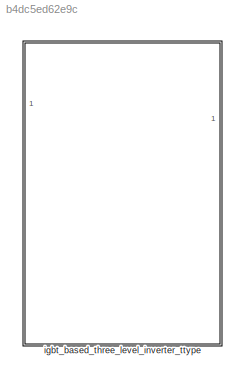
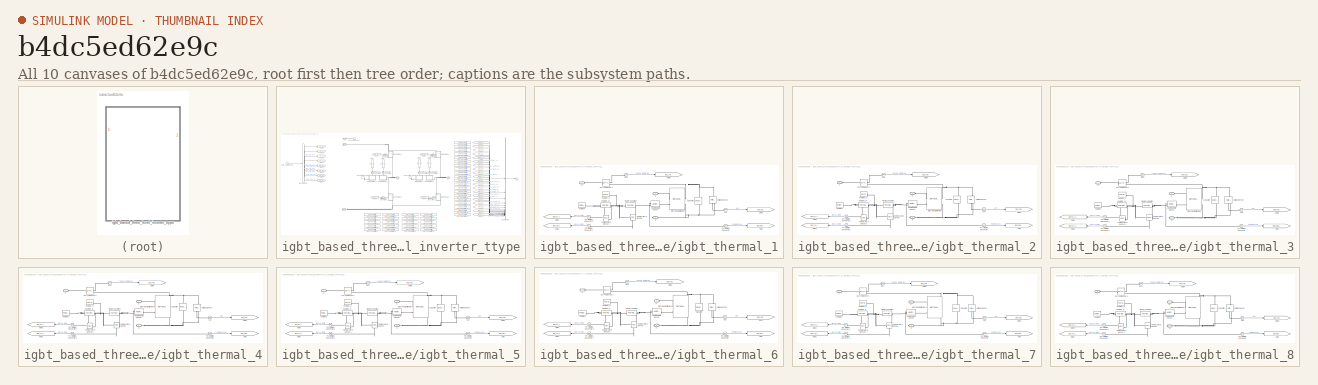
[diagram: thumbnail index - all 10 canvases of the model, root first then tree order]
MODEL slx_b4dc5ed62e9c
KIND library
CONFIG AbsTol = auto
CONFIG EnableMultiTasking = off
CONFIG FixedStep = auto
CONFIG MaxStep = auto
CONFIG MinStep = auto
CONFIG RelTol = 1e-3
CONFIG SampleTimeConstraint = Unconstrained
CONFIG SolverName = VariableStepAuto
CONFIG StartTime = 0.0
CONFIG StopTime = 10.0
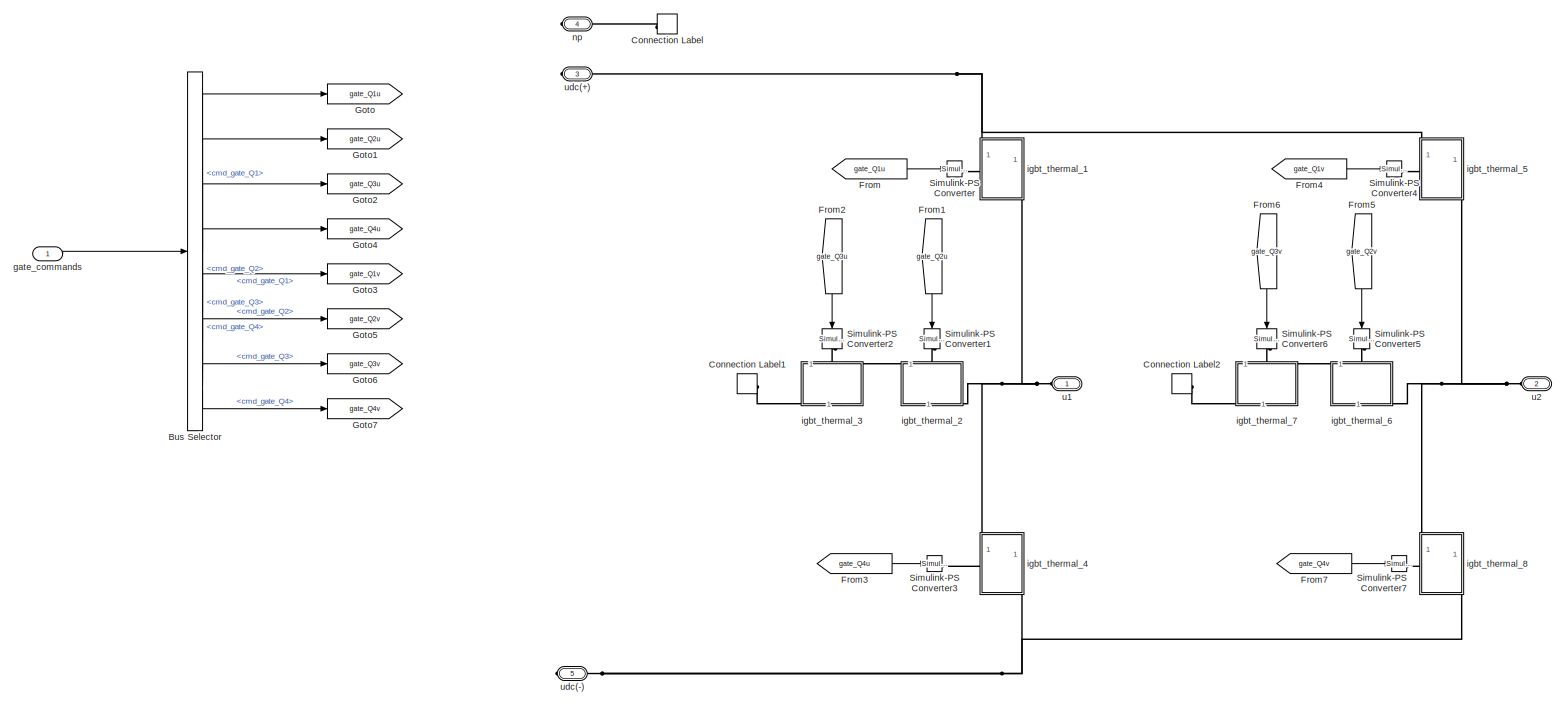
[diagram: igbt_based_three_level_inverter_ttype - part 1/3, center side, full height]
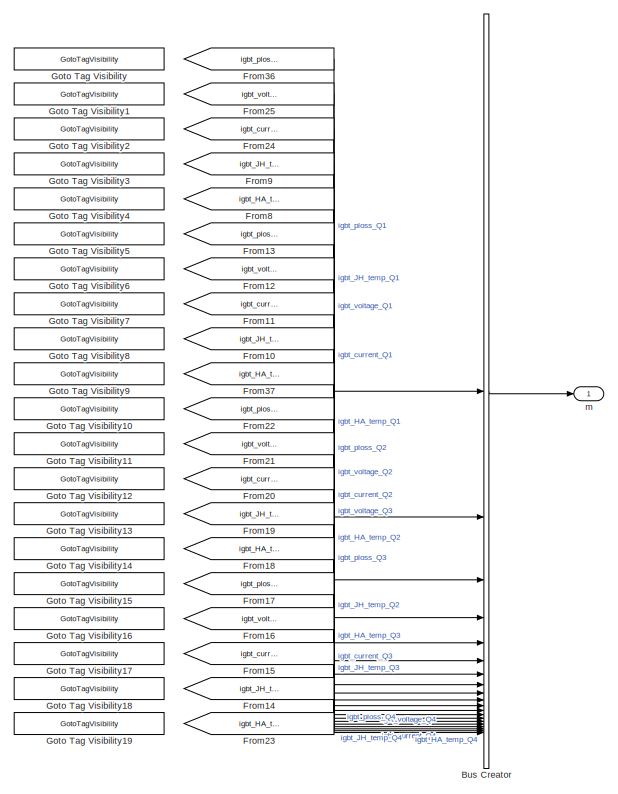
[diagram: igbt_based_three_level_inverter_ttype - part 2/3, right side, full height]
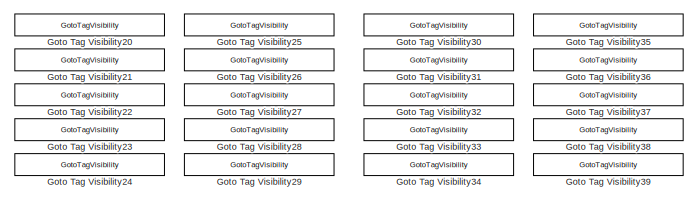
[diagram: igbt_based_three_level_inverter_ttype - part 3/3, bottom center region]
BLOCK [SubSystem] igbt_based_three_level_inverter_ttype
BLOCK [BusCreator] igbt_based_three_level_inverter_ttype/Bus Creator
  DisplayOption = bar
  InheritFromInputs = on
  Inputs = 20
BLOCK [BusSelector] igbt_based_three_level_inverter_ttype/Bus Selector
  OutputSignals = gate_cmds_ph1.cmd_gate_Q1,gate_cmds_ph1.cmd_gate_Q2,gate_cmds_ph1.cmd_gate_Q3,gate_cmds_ph1.cmd_gate_Q4,gate_cmds_ph2.cmd_gate_Q1,gate_cmds_ph2.cmd_gate_Q2,gate_cmds_ph2.cmd_gate_Q3,gate_cmds_ph2.cmd_gate_Q4
BLOCK [ConnectionLabel] igbt_based_three_level_inverter_ttype/Connection Label
  Label = np
BLOCK [ConnectionLabel] igbt_based_three_level_inverter_ttype/Connection Label1
  Label = np
  NameLocation = top
BLOCK [ConnectionLabel] igbt_based_three_level_inverter_ttype/Connection Label2
  Label = np
  NameLocation = top
BLOCK [From] igbt_based_three_level_inverter_ttype/From
  GotoTag = gate_Q1u
BLOCK [From] igbt_based_three_level_inverter_ttype/From1
  GotoTag = gate_Q2u
  NameLocation = left
BLOCK [From] igbt_based_three_level_inverter_ttype/From10
  GotoTag = igbt_JH_temp_Q2
  TagVisibility = scoped
BLOCK [From] igbt_based_three_level_inverter_ttype/From11
  GotoTag = igbt_current_Q2
  TagVisibility = scoped
BLOCK [From] igbt_based_three_level_inverter_ttype/From12
  GotoTag = igbt_voltage_Q2
  TagVisibility = scoped
BLOCK [From] igbt_based_three_level_inverter_ttype/From13
  GotoTag = igbt_ploss_Q2
  TagVisibility = scoped
BLOCK [From] igbt_based_three_level_inverter_ttype/From14
  GotoTag = igbt_JH_temp_Q4
  TagVisibility = scoped
BLOCK [From] igbt_based_three_level_inverter_ttype/From15
  GotoTag = igbt_current_Q4
  TagVisibility = scoped
BLOCK [From] igbt_based_three_level_inverter_ttype/From16
  GotoTag = igbt_voltage_Q4
  TagVisibility = scoped
BLOCK [From] igbt_based_three_level_inverter_ttype/From17
  GotoTag = igbt_ploss_Q4
  TagVisibility = scoped
BLOCK [From] igbt_based_three_level_inverter_ttype/From18
  GotoTag = igbt_HA_temp_Q3
  TagVisibility = scoped
BLOCK [From] igbt_based_three_level_inverter_ttype/From19
  GotoTag = igbt_JH_temp_Q3
  TagVisibility = scoped
BLOCK [From] igbt_based_three_level_inverter_ttype/From2
  GotoTag = gate_Q3u
  NameLocation = left
BLOCK [From] igbt_based_three_level_inverter_ttype/From20
  GotoTag = igbt_current_Q3
  TagVisibility = scoped
BLOCK [From] igbt_based_three_level_inverter_ttype/From21
  GotoTag = igbt_voltage_Q3
  TagVisibility = scoped
BLOCK [From] igbt_based_three_level_inverter_ttype/From22
  GotoTag = igbt_ploss_Q3
  TagVisibility = scoped
BLOCK [From] igbt_based_three_level_inverter_ttype/From23
  GotoTag = igbt_HA_temp_Q4
  TagVisibility = scoped
BLOCK [From] igbt_based_three_level_inverter_ttype/From24
  GotoTag = igbt_current_Q1
BLOCK [From] igbt_based_three_level_inverter_ttype/From25
  GotoTag = igbt_voltage_Q1
BLOCK [From] igbt_based_three_level_inverter_ttype/From3
  GotoTag = gate_Q4u
  NameLocation = top
BLOCK [From] igbt_based_three_level_inverter_ttype/From36
  GotoTag = igbt_ploss_Q1
BLOCK [From] igbt_based_three_level_inverter_ttype/From37
  GotoTag = igbt_HA_temp_Q2
  TagVisibility = scoped
BLOCK [From] igbt_based_three_level_inverter_ttype/From4
  GotoTag = gate_Q1v
BLOCK [From] igbt_based_three_level_inverter_ttype/From5
  GotoTag = gate_Q2v
  NameLocation = left
BLOCK [From] igbt_based_three_level_inverter_ttype/From6
  GotoTag = gate_Q3v
  NameLocation = left
BLOCK [From] igbt_based_three_level_inverter_ttype/From7
  GotoTag = gate_Q4v
  NameLocation = top
BLOCK [From] igbt_based_three_level_inverter_ttype/From8
  GotoTag = igbt_HA_temp_Q1
BLOCK [From] igbt_based_three_level_inverter_ttype/From9
  GotoTag = igbt_JH_temp_Q1
BLOCK [Goto] igbt_based_three_level_inverter_ttype/Goto
  GotoTag = gate_Q1u
BLOCK [GotoTagVisibility] igbt_based_three_level_inverter_ttype/Goto Tag Visibility
  GotoTag = igbt_ploss_Q1
BLOCK [GotoTagVisibility] igbt_based_three_level_inverter_ttype/Goto Tag Visibility1
  GotoTag = igbt_voltage_Q1
BLOCK [GotoTagVisibility] igbt_based_three_level_inverter_ttype/Goto Tag Visibility10
  GotoTag = igbt_ploss_Q3
BLOCK [GotoTagVisibility] igbt_based_three_level_inverter_ttype/Goto Tag Visibility11
  GotoTag = igbt_voltage_Q3
BLOCK [GotoTagVisibility] igbt_based_three_level_inverter_ttype/Goto Tag Visibility12
  GotoTag = igbt_current_Q3
BLOCK [GotoTagVisibility] igbt_based_three_level_inverter_ttype/Goto Tag Visibility13
  GotoTag = igbt_JH_temp_Q3
BLOCK [GotoTagVisibility] igbt_based_three_level_inverter_ttype/Goto Tag Visibility14
  GotoTag = igbt_HA_temp_Q3
  NameLocation = top
BLOCK [GotoTagVisibility] igbt_based_three_level_inverter_ttype/Goto Tag Visibility15
  GotoTag = igbt_ploss_Q4
BLOCK [GotoTagVisibility] igbt_based_three_level_inverter_ttype/Goto Tag Visibility16
  GotoTag = igbt_voltage_Q4
BLOCK [GotoTagVisibility] igbt_based_three_level_inverter_ttype/Goto Tag Visibility17
  GotoTag = igbt_current_Q4
BLOCK [GotoTagVisibility] igbt_based_three_level_inverter_ttype/Goto Tag Visibility18
  GotoTag = igbt_JH_temp_Q4
BLOCK [GotoTagVisibility] igbt_based_three_level_inverter_ttype/Goto Tag Visibility19
  GotoTag = igbt_HA_temp_Q4
  NameLocation = top
BLOCK [GotoTagVisibility] igbt_based_three_level_inverter_ttype/Goto Tag Visibility2
  GotoTag = igbt_current_Q1
BLOCK [GotoTagVisibility] igbt_based_three_level_inverter_ttype/Goto Tag Visibility20
  GotoTag = igbt_ploss_Q5
BLOCK [GotoTagVisibility] igbt_based_three_level_inverter_ttype/Goto Tag Visibility21
  GotoTag = igbt_voltage_Q5
BLOCK [GotoTagVisibility] igbt_based_three_level_inverter_ttype/Goto Tag Visibility22
  GotoTag = igbt_current_Q5
BLOCK [GotoTagVisibility] igbt_based_three_level_inverter_ttype/Goto Tag Visibility23
  GotoTag = igbt_JH_temp_Q5
BLOCK [GotoTagVisibility] igbt_based_three_level_inverter_ttype/Goto Tag Visibility24
  GotoTag = igbt_HA_temp_Q5
  NameLocation = top
BLOCK [GotoTagVisibility] igbt_based_three_level_inverter_ttype/Goto Tag Visibility25
  GotoTag = igbt_ploss_Q6
BLOCK [GotoTagVisibility] igbt_based_three_level_inverter_ttype/Goto Tag Visibility26
  GotoTag = igbt_voltage_Q6
BLOCK [GotoTagVisibility] igbt_based_three_level_inverter_ttype/Goto Tag Visibility27
  GotoTag = igbt_current_Q6
BLOCK [GotoTagVisibility] igbt_based_three_level_inverter_ttype/Goto Tag Visibility28
  GotoTag = igbt_JH_temp_Q6
BLOCK [GotoTagVisibility] igbt_based_three_level_inverter_ttype/Goto Tag Visibility29
  GotoTag = igbt_HA_temp_Q6
  NameLocation = top
BLOCK [GotoTagVisibility] igbt_based_three_level_inverter_ttype/Goto Tag Visibility3
  GotoTag = igbt_JH_temp_Q1
BLOCK [GotoTagVisibility] igbt_based_three_level_inverter_ttype/Goto Tag Visibility30
  GotoTag = igbt_ploss_Q7
BLOCK [GotoTagVisibility] igbt_based_three_level_inverter_ttype/Goto Tag Visibility31
  GotoTag = igbt_voltage_Q7
BLOCK [GotoTagVisibility] igbt_based_three_level_inverter_ttype/Goto Tag Visibility32
  GotoTag = igbt_current_Q7
BLOCK [GotoTagVisibility] igbt_based_three_level_inverter_ttype/Goto Tag Visibility33
  GotoTag = igbt_JH_temp_Q7
BLOCK [GotoTagVisibility] igbt_based_three_level_inverter_ttype/Goto Tag Visibility34
  GotoTag = igbt_HA_temp_Q7
  NameLocation = top
BLOCK [GotoTagVisibility] igbt_based_three_level_inverter_ttype/Goto Tag Visibility35
  GotoTag = igbt_ploss_Q8
BLOCK [GotoTagVisibility] igbt_based_three_level_inverter_ttype/Goto Tag Visibility36
  GotoTag = igbt_voltage_Q8
BLOCK [GotoTagVisibility] igbt_based_three_level_inverter_ttype/Goto Tag Visibility37
  GotoTag = igbt_current_Q8
BLOCK [GotoTagVisibility] igbt_based_three_level_inverter_ttype/Goto Tag Visibility38
  GotoTag = igbt_JH_temp_Q8
BLOCK [GotoTagVisibility] igbt_based_three_level_inverter_ttype/Goto Tag Visibility39
  GotoTag = igbt_HA_temp_Q8
  NameLocation = top
BLOCK [GotoTagVisibility] igbt_based_three_level_inverter_ttype/Goto Tag Visibility4
  GotoTag = igbt_HA_temp_Q1
BLOCK [GotoTagVisibility] igbt_based_three_level_inverter_ttype/Goto Tag Visibility5
  GotoTag = igbt_ploss_Q2
BLOCK [GotoTagVisibility] igbt_based_three_level_inverter_ttype/Goto Tag Visibility6
  GotoTag = igbt_voltage_Q2
BLOCK [GotoTagVisibility] igbt_based_three_level_inverter_ttype/Goto Tag Visibility7
  GotoTag = igbt_current_Q2
BLOCK [GotoTagVisibility] igbt_based_three_level_inverter_ttype/Goto Tag Visibility8
  GotoTag = igbt_JH_temp_Q2
BLOCK [GotoTagVisibility] igbt_based_three_level_inverter_ttype/Goto Tag Visibility9
  GotoTag = igbt_HA_temp_Q2
  NameLocation = top
BLOCK [Goto] igbt_based_three_level_inverter_ttype/Goto1
  GotoTag = gate_Q2u
BLOCK [Goto] igbt_based_three_level_inverter_ttype/Goto2
  GotoTag = gate_Q3u
BLOCK [Goto] igbt_based_three_level_inverter_ttype/Goto3
  GotoTag = gate_Q1v
BLOCK [Goto] igbt_based_three_level_inverter_ttype/Goto4
  GotoTag = gate_Q4u
BLOCK [Goto] igbt_based_three_level_inverter_ttype/Goto5
  GotoTag = gate_Q2v
BLOCK [Goto] igbt_based_three_level_inverter_ttype/Goto6
  GotoTag = gate_Q3v
BLOCK [Goto] igbt_based_three_level_inverter_ttype/Goto7
  GotoTag = gate_Q4v
BLOCK [Reference] igbt_based_three_level_inverter_ttype/Simulink-PS Converter  REF=nesl_utility/Simulink-PS
Converter
  SourceBlock = nesl_utility/Simulink-PS\nConverter
  SourceType = Simulink-PS\nConverter
BLOCK [Reference] igbt_based_three_level_inverter_ttype/Simulink-PS Converter1  REF=nesl_utility/Simulink-PS
Converter
  NameLocation = top
  SourceBlock = nesl_utility/Simulink-PS\nConverter
  SourceType = Simulink-PS\nConverter
BLOCK [Reference] igbt_based_three_level_inverter_ttype/Simulink-PS Converter2  REF=nesl_utility/Simulink-PS
Converter
  NameLocation = right
  SourceBlock = nesl_utility/Simulink-PS\nConverter
  SourceType = Simulink-PS\nConverter
BLOCK [Reference] igbt_based_three_level_inverter_ttype/Simulink-PS Converter3  REF=nesl_utility/Simulink-PS
Converter
  NameLocation = top
  SourceBlock = nesl_utility/Simulink-PS\nConverter
  SourceType = Simulink-PS\nConverter
BLOCK [Reference] igbt_based_three_level_inverter_ttype/Simulink-PS Converter4  REF=nesl_utility/Simulink-PS
Converter
  SourceBlock = nesl_utility/Simulink-PS\nConverter
  SourceType = Simulink-PS\nConverter
BLOCK [Reference] igbt_based_three_level_inverter_ttype/Simulink-PS Converter5  REF=nesl_utility/Simulink-PS
Converter
  NameLocation = top
  SourceBlock = nesl_utility/Simulink-PS\nConverter
  SourceType = Simulink-PS\nConverter
BLOCK [Reference] igbt_based_three_level_inverter_ttype/Simulink-PS Converter6  REF=nesl_utility/Simulink-PS
Converter
  NameLocation = right
  SourceBlock = nesl_utility/Simulink-PS\nConverter
  SourceType = Simulink-PS\nConverter
BLOCK [Reference] igbt_based_three_level_inverter_ttype/Simulink-PS Converter7  REF=nesl_utility/Simulink-PS
Converter
  NameLocation = top
  SourceBlock = nesl_utility/Simulink-PS\nConverter
  SourceType = Simulink-PS\nConverter
BLOCK [Inport] igbt_based_three_level_inverter_ttype/gate_commands
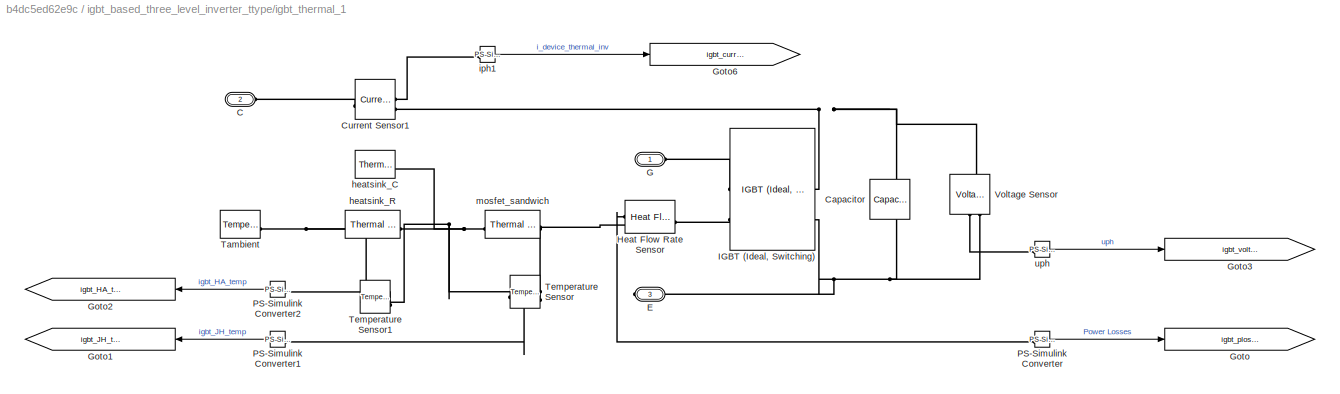
BLOCK [SubSystem] igbt_based_three_level_inverter_ttype/igbt_thermal_1
  NameLocation = right
  PortSchema = {"entries":[{"content":{"sides":[{"content":{"connectorIds":["LConn1"]},"type":"ConnectorPlacement.EquallySpacedRectSide","uuid":"9277da8d-d460-43e6-8478-dd662f15d226"},{"content":{"connectorIds":[],"side":"RIGHT"},"type":"ConnectorPlacement.EquallySpacedRectSide","uuid":"a7ece396-f1d9-4f4f-a05b-db1fc65d6e1d"},{"content":{"connectorIds":["LConn2"],"side":"TOP"},"type":"ConnectorPlacement.EquallySp...<+397ch>  <repeated x8 — deduplicated; at blocks: igbt_thermal_1, igbt_thermal_2, igbt_thermal_3, igbt_thermal_4, igbt_thermal_5, igbt_thermal_6, igbt_thermal_7, igbt_thermal_8>
BLOCK [PMIOPort] igbt_based_three_level_inverter_ttype/igbt_thermal_1/C
  Port = 2
  Side = Left
BLOCK [Reference] igbt_based_three_level_inverter_ttype/igbt_thermal_1/Capacitor  REF=fl_lib/Electrical/Electrical Elements/Capacitor
  NameLocation = left
  SourceBlock = fl_lib/Electrical/Electrical Elements/Capacitor
  SourceType = Capacitor
BLOCK [Reference] igbt_based_three_level_inverter_ttype/igbt_thermal_1/Current Sensor1  REF=fl_lib/Electrical/Electrical Sensors/Current Sensor
  SourceBlock = fl_lib/Electrical/Electrical Sensors/Current Sensor
  SourceType = Current Sensor
BLOCK [PMIOPort] igbt_based_three_level_inverter_ttype/igbt_thermal_1/E
  Port = 3
  Side = Right
BLOCK [PMIOPort] igbt_based_three_level_inverter_ttype/igbt_thermal_1/G
  NameLocation = top
  Side = Left
BLOCK [Goto] igbt_based_three_level_inverter_ttype/igbt_thermal_1/Goto
  GotoTag = igbt_ploss_Q1
  TagVisibility = scoped
BLOCK [Goto] igbt_based_three_level_inverter_ttype/igbt_thermal_1/Goto1
  GotoTag = igbt_JH_temp_Q1
  NameLocation = top
  TagVisibility = scoped
BLOCK [Goto] igbt_based_three_level_inverter_ttype/igbt_thermal_1/Goto2
  GotoTag = igbt_HA_temp_Q1
  NameLocation = top
  TagVisibility = scoped
BLOCK [Goto] igbt_based_three_level_inverter_ttype/igbt_thermal_1/Goto3
  GotoTag = igbt_voltage_Q1
  TagVisibility = scoped
BLOCK [Goto] igbt_based_three_level_inverter_ttype/igbt_thermal_1/Goto6
  GotoTag = igbt_current_Q1
  TagVisibility = scoped
BLOCK [Reference] igbt_based_three_level_inverter_ttype/igbt_thermal_1/Heat Flow Rate Sensor  REF=fl_lib/Thermal/Thermal Sensors/Heat Flow Rate
Sensor
  SourceBlock = fl_lib/Thermal/Thermal Sensors/Heat Flow Rate\nSensor
  SourceType = Heat Flow Rate\nSensor
BLOCK [Reference] igbt_based_three_level_inverter_ttype/igbt_thermal_1/IGBT (Ideal, Switching)  REF=ee_lib/Semiconductors &
Converters/IGBT
(Ideal,
Switching)
  SourceBlock = ee_lib/Semiconductors &\nConverters/IGBT\n(Ideal,\nSwitching)
  SourceType = IGBT\n(Ideal,\nSwitching)
BLOCK [Reference] igbt_based_three_level_inverter_ttype/igbt_thermal_1/PS-Simulink Converter  REF=nesl_utility/PS-Simulink
Converter
  SourceBlock = nesl_utility/PS-Simulink\nConverter
  SourceType = PS-Simulink\nConverter
BLOCK [Reference] igbt_based_three_level_inverter_ttype/igbt_thermal_1/PS-Simulink Converter1  REF=nesl_utility/PS-Simulink
Converter
  SourceBlock = nesl_utility/PS-Simulink\nConverter
  SourceType = PS-Simulink\nConverter
BLOCK [Reference] igbt_based_three_level_inverter_ttype/igbt_thermal_1/PS-Simulink Converter2  REF=nesl_utility/PS-Simulink
Converter
  NameLocation = right
  SourceBlock = nesl_utility/PS-Simulink\nConverter
  SourceType = PS-Simulink\nConverter
BLOCK [Reference] igbt_based_three_level_inverter_ttype/igbt_thermal_1/Tambient  REF=fl_lib/Thermal/Thermal Sources/Temperature Source
  SourceBlock = fl_lib/Thermal/Thermal Sources/Temperature Source
  SourceType = Temperature Source
BLOCK [Reference] igbt_based_three_level_inverter_ttype/igbt_thermal_1/Temperature Sensor  REF=fl_lib/Thermal/Thermal Sensors/Temperature Sensor
  NameLocation = top
  SourceBlock = fl_lib/Thermal/Thermal Sensors/Temperature Sensor
  SourceType = Temperature Sensor
BLOCK [Reference] igbt_based_three_level_inverter_ttype/igbt_thermal_1/Temperature Sensor1  REF=fl_lib/Thermal/Thermal Sensors/Temperature Sensor
  NameLocation = top
  SourceBlock = fl_lib/Thermal/Thermal Sensors/Temperature Sensor
  SourceType = Temperature Sensor
BLOCK [Reference] igbt_based_three_level_inverter_ttype/igbt_thermal_1/Voltage Sensor  REF=fl_lib/Electrical/Electrical Sensors/Voltage Sensor
  NameLocation = right
  SourceBlock = fl_lib/Electrical/Electrical Sensors/Voltage Sensor
  SourceType = Voltage Sensor
BLOCK [Reference] igbt_based_three_level_inverter_ttype/igbt_thermal_1/heatsink_C  REF=fl_lib/Thermal/Thermal Elements/Thermal Mass
  SourceBlock = fl_lib/Thermal/Thermal Elements/Thermal Mass
  SourceType = Thermal Mass
BLOCK [Reference] igbt_based_three_level_inverter_ttype/igbt_thermal_1/heatsink_R  REF=fl_lib/Thermal/Thermal Elements/Thermal Resistance
  SourceBlock = fl_lib/Thermal/Thermal Elements/Thermal Resistance
  SourceType = Thermal Resistance
BLOCK [Reference] igbt_based_three_level_inverter_ttype/igbt_thermal_1/iph1  REF=nesl_utility/PS-Simulink
Converter
  SourceBlock = nesl_utility/PS-Simulink\nConverter
  SourceType = PS-Simulink\nConverter
BLOCK [Reference] igbt_based_three_level_inverter_ttype/igbt_thermal_1/mosfet_sandwich  REF=fl_lib/Thermal/Thermal Elements/Thermal Resistance
  SourceBlock = fl_lib/Thermal/Thermal Elements/Thermal Resistance
  SourceType = Thermal Resistance
BLOCK [Reference] igbt_based_three_level_inverter_ttype/igbt_thermal_1/uph  REF=nesl_utility/PS-Simulink
Converter
  SourceBlock = nesl_utility/PS-Simulink\nConverter
  SourceType = PS-Simulink\nConverter
BLOCK [SubSystem] igbt_based_three_level_inverter_ttype/igbt_thermal_2
BLOCK [PMIOPort] igbt_based_three_level_inverter_ttype/igbt_thermal_2/C
  Port = 2
  Side = Left
BLOCK [Reference] igbt_based_three_level_inverter_ttype/igbt_thermal_2/Capacitor  REF=fl_lib/Electrical/Electrical Elements/Capacitor
  NameLocation = left
  SourceBlock = fl_lib/Electrical/Electrical Elements/Capacitor
  SourceType = Capacitor
BLOCK [Reference] igbt_based_three_level_inverter_ttype/igbt_thermal_2/Current Sensor1  REF=fl_lib/Electrical/Electrical Sensors/Current Sensor
  SourceBlock = fl_lib/Electrical/Electrical Sensors/Current Sensor
  SourceType = Current Sensor
BLOCK [PMIOPort] igbt_based_three_level_inverter_ttype/igbt_thermal_2/E
  Port = 3
  Side = Right
BLOCK [PMIOPort] igbt_based_three_level_inverter_ttype/igbt_thermal_2/G
  NameLocation = top
  Side = Left
BLOCK [Goto] igbt_based_three_level_inverter_ttype/igbt_thermal_2/Goto
  GotoTag = igbt_ploss_Q2
  TagVisibility = scoped
BLOCK [Goto] igbt_based_three_level_inverter_ttype/igbt_thermal_2/Goto1
  GotoTag = igbt_JH_temp_Q2
  NameLocation = top
  TagVisibility = scoped
BLOCK [Goto] igbt_based_three_level_inverter_ttype/igbt_thermal_2/Goto2
  GotoTag = igbt_HA_temp_Q2
  NameLocation = top
  TagVisibility = scoped
BLOCK [Goto] igbt_based_three_level_inverter_ttype/igbt_thermal_2/Goto3
  GotoTag = igbt_voltage_Q2
  TagVisibility = scoped
BLOCK [Goto] igbt_based_three_level_inverter_ttype/igbt_thermal_2/Goto6
  GotoTag = igbt_current_Q2
  TagVisibility = scoped
BLOCK [Reference] igbt_based_three_level_inverter_ttype/igbt_thermal_2/Heat Flow Rate Sensor  REF=fl_lib/Thermal/Thermal Sensors/Heat Flow Rate
Sensor
  SourceBlock = fl_lib/Thermal/Thermal Sensors/Heat Flow Rate\nSensor
  SourceType = Heat Flow Rate\nSensor
BLOCK [Reference] igbt_based_three_level_inverter_ttype/igbt_thermal_2/IGBT (Ideal, Switching)  REF=ee_lib/Semiconductors &
Converters/IGBT
(Ideal,
Switching)
  SourceBlock = ee_lib/Semiconductors &\nConverters/IGBT\n(Ideal,\nSwitching)
  SourceType = IGBT\n(Ideal,\nSwitching)
BLOCK [Reference] igbt_based_three_level_inverter_ttype/igbt_thermal_2/PS-Simulink Converter  REF=nesl_utility/PS-Simulink
Converter
  SourceBlock = nesl_utility/PS-Simulink\nConverter
  SourceType = PS-Simulink\nConverter
BLOCK [Reference] igbt_based_three_level_inverter_ttype/igbt_thermal_2/PS-Simulink Converter1  REF=nesl_utility/PS-Simulink
Converter
  SourceBlock = nesl_utility/PS-Simulink\nConverter
  SourceType = PS-Simulink\nConverter
BLOCK [Reference] igbt_based_three_level_inverter_ttype/igbt_thermal_2/PS-Simulink Converter2  REF=nesl_utility/PS-Simulink
Converter
  NameLocation = right
  SourceBlock = nesl_utility/PS-Simulink\nConverter
  SourceType = PS-Simulink\nConverter
BLOCK [Reference] igbt_based_three_level_inverter_ttype/igbt_thermal_2/Tambient  REF=fl_lib/Thermal/Thermal Sources/Temperature Source
  SourceBlock = fl_lib/Thermal/Thermal Sources/Temperature Source
  SourceType = Temperature Source
BLOCK [Reference] igbt_based_three_level_inverter_ttype/igbt_thermal_2/Temperature Sensor  REF=fl_lib/Thermal/Thermal Sensors/Temperature Sensor
  NameLocation = top
  SourceBlock = fl_lib/Thermal/Thermal Sensors/Temperature Sensor
  SourceType = Temperature Sensor
BLOCK [Reference] igbt_based_three_level_inverter_ttype/igbt_thermal_2/Temperature Sensor1  REF=fl_lib/Thermal/Thermal Sensors/Temperature Sensor
  NameLocation = top
  SourceBlock = fl_lib/Thermal/Thermal Sensors/Temperature Sensor
  SourceType = Temperature Sensor
BLOCK [Reference] igbt_based_three_level_inverter_ttype/igbt_thermal_2/Voltage Sensor  REF=fl_lib/Electrical/Electrical Sensors/Voltage Sensor
  NameLocation = right
  SourceBlock = fl_lib/Electrical/Electrical Sensors/Voltage Sensor
  SourceType = Voltage Sensor
BLOCK [Reference] igbt_based_three_level_inverter_ttype/igbt_thermal_2/heatsink_C  REF=fl_lib/Thermal/Thermal Elements/Thermal Mass
  SourceBlock = fl_lib/Thermal/Thermal Elements/Thermal Mass
  SourceType = Thermal Mass
BLOCK [Reference] igbt_based_three_level_inverter_ttype/igbt_thermal_2/heatsink_R  REF=fl_lib/Thermal/Thermal Elements/Thermal Resistance
  SourceBlock = fl_lib/Thermal/Thermal Elements/Thermal Resistance
  SourceType = Thermal Resistance
BLOCK [Reference] igbt_based_three_level_inverter_ttype/igbt_thermal_2/iph1  REF=nesl_utility/PS-Simulink
Converter
  SourceBlock = nesl_utility/PS-Simulink\nConverter
  SourceType = PS-Simulink\nConverter
BLOCK [Reference] igbt_based_three_level_inverter_ttype/igbt_thermal_2/mosfet_sandwich  REF=fl_lib/Thermal/Thermal Elements/Thermal Resistance
  SourceBlock = fl_lib/Thermal/Thermal Elements/Thermal Resistance
  SourceType = Thermal Resistance
BLOCK [Reference] igbt_based_three_level_inverter_ttype/igbt_thermal_2/uph  REF=nesl_utility/PS-Simulink
Converter
  SourceBlock = nesl_utility/PS-Simulink\nConverter
  SourceType = PS-Simulink\nConverter
BLOCK [SubSystem] igbt_based_three_level_inverter_ttype/igbt_thermal_3
BLOCK [PMIOPort] igbt_based_three_level_inverter_ttype/igbt_thermal_3/C
  Port = 2
  Side = Left
BLOCK [Reference] igbt_based_three_level_inverter_ttype/igbt_thermal_3/Capacitor  REF=fl_lib/Electrical/Electrical Elements/Capacitor
  NameLocation = left
  SourceBlock = fl_lib/Electrical/Electrical Elements/Capacitor
  SourceType = Capacitor
BLOCK [Reference] igbt_based_three_level_inverter_ttype/igbt_thermal_3/Current Sensor1  REF=fl_lib/Electrical/Electrical Sensors/Current Sensor
  SourceBlock = fl_lib/Electrical/Electrical Sensors/Current Sensor
  SourceType = Current Sensor
BLOCK [PMIOPort] igbt_based_three_level_inverter_ttype/igbt_thermal_3/E
  Port = 3
  Side = Right
BLOCK [PMIOPort] igbt_based_three_level_inverter_ttype/igbt_thermal_3/G
  NameLocation = top
  Side = Left
BLOCK [Goto] igbt_based_three_level_inverter_ttype/igbt_thermal_3/Goto
  GotoTag = igbt_ploss_Q3
  TagVisibility = scoped
BLOCK [Goto] igbt_based_three_level_inverter_ttype/igbt_thermal_3/Goto1
  GotoTag = igbt_JH_temp_Q3
  NameLocation = top
  TagVisibility = scoped
BLOCK [Goto] igbt_based_three_level_inverter_ttype/igbt_thermal_3/Goto2
  GotoTag = igbt_HA_temp_Q3
  NameLocation = top
  TagVisibility = scoped
BLOCK [Goto] igbt_based_three_level_inverter_ttype/igbt_thermal_3/Goto3
  GotoTag = igbt_voltage_Q3
  TagVisibility = scoped
BLOCK [Goto] igbt_based_three_level_inverter_ttype/igbt_thermal_3/Goto6
  GotoTag = igbt_current_Q3
  TagVisibility = scoped
BLOCK [Reference] igbt_based_three_level_inverter_ttype/igbt_thermal_3/Heat Flow Rate Sensor  REF=fl_lib/Thermal/Thermal Sensors/Heat Flow Rate
Sensor
  SourceBlock = fl_lib/Thermal/Thermal Sensors/Heat Flow Rate\nSensor
  SourceType = Heat Flow Rate\nSensor
BLOCK [Reference] igbt_based_three_level_inverter_ttype/igbt_thermal_3/IGBT (Ideal, Switching)  REF=ee_lib/Semiconductors &
Converters/IGBT
(Ideal,
Switching)
  SourceBlock = ee_lib/Semiconductors &\nConverters/IGBT\n(Ideal,\nSwitching)
  SourceType = IGBT\n(Ideal,\nSwitching)
BLOCK [Reference] igbt_based_three_level_inverter_ttype/igbt_thermal_3/PS-Simulink Converter  REF=nesl_utility/PS-Simulink
Converter
  SourceBlock = nesl_utility/PS-Simulink\nConverter
  SourceType = PS-Simulink\nConverter
BLOCK [Reference] igbt_based_three_level_inverter_ttype/igbt_thermal_3/PS-Simulink Converter1  REF=nesl_utility/PS-Simulink
Converter
  SourceBlock = nesl_utility/PS-Simulink\nConverter
  SourceType = PS-Simulink\nConverter
BLOCK [Reference] igbt_based_three_level_inverter_ttype/igbt_thermal_3/PS-Simulink Converter2  REF=nesl_utility/PS-Simulink
Converter
  NameLocation = right
  SourceBlock = nesl_utility/PS-Simulink\nConverter
  SourceType = PS-Simulink\nConverter
BLOCK [Reference] igbt_based_three_level_inverter_ttype/igbt_thermal_3/Tambient  REF=fl_lib/Thermal/Thermal Sources/Temperature Source
  SourceBlock = fl_lib/Thermal/Thermal Sources/Temperature Source
  SourceType = Temperature Source
BLOCK [Reference] igbt_based_three_level_inverter_ttype/igbt_thermal_3/Temperature Sensor  REF=fl_lib/Thermal/Thermal Sensors/Temperature Sensor
  NameLocation = top
  SourceBlock = fl_lib/Thermal/Thermal Sensors/Temperature Sensor
  SourceType = Temperature Sensor
BLOCK [Reference] igbt_based_three_level_inverter_ttype/igbt_thermal_3/Temperature Sensor1  REF=fl_lib/Thermal/Thermal Sensors/Temperature Sensor
  NameLocation = top
  SourceBlock = fl_lib/Thermal/Thermal Sensors/Temperature Sensor
  SourceType = Temperature Sensor
BLOCK [Reference] igbt_based_three_level_inverter_ttype/igbt_thermal_3/Voltage Sensor  REF=fl_lib/Electrical/Electrical Sensors/Voltage Sensor
  NameLocation = right
  SourceBlock = fl_lib/Electrical/Electrical Sensors/Voltage Sensor
  SourceType = Voltage Sensor
BLOCK [Reference] igbt_based_three_level_inverter_ttype/igbt_thermal_3/heatsink_C  REF=fl_lib/Thermal/Thermal Elements/Thermal Mass
  SourceBlock = fl_lib/Thermal/Thermal Elements/Thermal Mass
  SourceType = Thermal Mass
BLOCK [Reference] igbt_based_three_level_inverter_ttype/igbt_thermal_3/heatsink_R  REF=fl_lib/Thermal/Thermal Elements/Thermal Resistance
  SourceBlock = fl_lib/Thermal/Thermal Elements/Thermal Resistance
  SourceType = Thermal Resistance
BLOCK [Reference] igbt_based_three_level_inverter_ttype/igbt_thermal_3/iph1  REF=nesl_utility/PS-Simulink
Converter
  SourceBlock = nesl_utility/PS-Simulink\nConverter
  SourceType = PS-Simulink\nConverter
BLOCK [Reference] igbt_based_three_level_inverter_ttype/igbt_thermal_3/mosfet_sandwich  REF=fl_lib/Thermal/Thermal Elements/Thermal Resistance
  SourceBlock = fl_lib/Thermal/Thermal Elements/Thermal Resistance
  SourceType = Thermal Resistance
BLOCK [Reference] igbt_based_three_level_inverter_ttype/igbt_thermal_3/uph  REF=nesl_utility/PS-Simulink
Converter
  SourceBlock = nesl_utility/PS-Simulink\nConverter
  SourceType = PS-Simulink\nConverter
BLOCK [SubSystem] igbt_based_three_level_inverter_ttype/igbt_thermal_4
  NameLocation = right
BLOCK [PMIOPort] igbt_based_three_level_inverter_ttype/igbt_thermal_4/C
  Port = 2
  Side = Left
BLOCK [Reference] igbt_based_three_level_inverter_ttype/igbt_thermal_4/Capacitor  REF=fl_lib/Electrical/Electrical Elements/Capacitor
  NameLocation = left
  SourceBlock = fl_lib/Electrical/Electrical Elements/Capacitor
  SourceType = Capacitor
BLOCK [Reference] igbt_based_three_level_inverter_ttype/igbt_thermal_4/Current Sensor1  REF=fl_lib/Electrical/Electrical Sensors/Current Sensor
  SourceBlock = fl_lib/Electrical/Electrical Sensors/Current Sensor
  SourceType = Current Sensor
BLOCK [PMIOPort] igbt_based_three_level_inverter_ttype/igbt_thermal_4/E
  Port = 3
  Side = Right
BLOCK [PMIOPort] igbt_based_three_level_inverter_ttype/igbt_thermal_4/G
  NameLocation = top
  Side = Left
BLOCK [Goto] igbt_based_three_level_inverter_ttype/igbt_thermal_4/Goto
  GotoTag = igbt_ploss_Q4
  TagVisibility = scoped
BLOCK [Goto] igbt_based_three_level_inverter_ttype/igbt_thermal_4/Goto1
  GotoTag = igbt_JH_temp_Q4
  NameLocation = top
  TagVisibility = scoped
BLOCK [Goto] igbt_based_three_level_inverter_ttype/igbt_thermal_4/Goto2
  GotoTag = igbt_HA_temp_Q4
  NameLocation = top
  TagVisibility = scoped
BLOCK [Goto] igbt_based_three_level_inverter_ttype/igbt_thermal_4/Goto3
  GotoTag = igbt_voltage_Q4
  TagVisibility = scoped
BLOCK [Goto] igbt_based_three_level_inverter_ttype/igbt_thermal_4/Goto6
  GotoTag = igbt_current_Q4
  TagVisibility = scoped
BLOCK [Reference] igbt_based_three_level_inverter_ttype/igbt_thermal_4/Heat Flow Rate Sensor  REF=fl_lib/Thermal/Thermal Sensors/Heat Flow Rate
Sensor
  SourceBlock = fl_lib/Thermal/Thermal Sensors/Heat Flow Rate\nSensor
  SourceType = Heat Flow Rate\nSensor
BLOCK [Reference] igbt_based_three_level_inverter_ttype/igbt_thermal_4/IGBT (Ideal, Switching)  REF=ee_lib/Semiconductors &
Converters/IGBT
(Ideal,
Switching)
  SourceBlock = ee_lib/Semiconductors &\nConverters/IGBT\n(Ideal,\nSwitching)
  SourceType = IGBT\n(Ideal,\nSwitching)
BLOCK [Reference] igbt_based_three_level_inverter_ttype/igbt_thermal_4/PS-Simulink Converter  REF=nesl_utility/PS-Simulink
Converter
  SourceBlock = nesl_utility/PS-Simulink\nConverter
  SourceType = PS-Simulink\nConverter
BLOCK [Reference] igbt_based_three_level_inverter_ttype/igbt_thermal_4/PS-Simulink Converter1  REF=nesl_utility/PS-Simulink
Converter
  SourceBlock = nesl_utility/PS-Simulink\nConverter
  SourceType = PS-Simulink\nConverter
BLOCK [Reference] igbt_based_three_level_inverter_ttype/igbt_thermal_4/PS-Simulink Converter2  REF=nesl_utility/PS-Simulink
Converter
  NameLocation = right
  SourceBlock = nesl_utility/PS-Simulink\nConverter
  SourceType = PS-Simulink\nConverter
BLOCK [Reference] igbt_based_three_level_inverter_ttype/igbt_thermal_4/Tambient  REF=fl_lib/Thermal/Thermal Sources/Temperature Source
  SourceBlock = fl_lib/Thermal/Thermal Sources/Temperature Source
  SourceType = Temperature Source
BLOCK [Reference] igbt_based_three_level_inverter_ttype/igbt_thermal_4/Temperature Sensor  REF=fl_lib/Thermal/Thermal Sensors/Temperature Sensor
  NameLocation = top
  SourceBlock = fl_lib/Thermal/Thermal Sensors/Temperature Sensor
  SourceType = Temperature Sensor
BLOCK [Reference] igbt_based_three_level_inverter_ttype/igbt_thermal_4/Temperature Sensor1  REF=fl_lib/Thermal/Thermal Sensors/Temperature Sensor
  NameLocation = top
  SourceBlock = fl_lib/Thermal/Thermal Sensors/Temperature Sensor
  SourceType = Temperature Sensor
BLOCK [Reference] igbt_based_three_level_inverter_ttype/igbt_thermal_4/Voltage Sensor  REF=fl_lib/Electrical/Electrical Sensors/Voltage Sensor
  NameLocation = right
  SourceBlock = fl_lib/Electrical/Electrical Sensors/Voltage Sensor
  SourceType = Voltage Sensor
BLOCK [Reference] igbt_based_three_level_inverter_ttype/igbt_thermal_4/heatsink_C  REF=fl_lib/Thermal/Thermal Elements/Thermal Mass
  SourceBlock = fl_lib/Thermal/Thermal Elements/Thermal Mass
  SourceType = Thermal Mass
BLOCK [Reference] igbt_based_three_level_inverter_ttype/igbt_thermal_4/heatsink_R  REF=fl_lib/Thermal/Thermal Elements/Thermal Resistance
  SourceBlock = fl_lib/Thermal/Thermal Elements/Thermal Resistance
  SourceType = Thermal Resistance
BLOCK [Reference] igbt_based_three_level_inverter_ttype/igbt_thermal_4/iph1  REF=nesl_utility/PS-Simulink
Converter
  SourceBlock = nesl_utility/PS-Simulink\nConverter
  SourceType = PS-Simulink\nConverter
BLOCK [Reference] igbt_based_three_level_inverter_ttype/igbt_thermal_4/mosfet_sandwich  REF=fl_lib/Thermal/Thermal Elements/Thermal Resistance
  SourceBlock = fl_lib/Thermal/Thermal Elements/Thermal Resistance
  SourceType = Thermal Resistance
BLOCK [Reference] igbt_based_three_level_inverter_ttype/igbt_thermal_4/uph  REF=nesl_utility/PS-Simulink
Converter
  SourceBlock = nesl_utility/PS-Simulink\nConverter
  SourceType = PS-Simulink\nConverter
BLOCK [SubSystem] igbt_based_three_level_inverter_ttype/igbt_thermal_5
  NameLocation = right
BLOCK [PMIOPort] igbt_based_three_level_inverter_ttype/igbt_thermal_5/C
  Port = 2
  Side = Left
BLOCK [Reference] igbt_based_three_level_inverter_ttype/igbt_thermal_5/Capacitor  REF=fl_lib/Electrical/Electrical Elements/Capacitor
  NameLocation = left
  SourceBlock = fl_lib/Electrical/Electrical Elements/Capacitor
  SourceType = Capacitor
BLOCK [Reference] igbt_based_three_level_inverter_ttype/igbt_thermal_5/Current Sensor1  REF=fl_lib/Electrical/Electrical Sensors/Current Sensor
  SourceBlock = fl_lib/Electrical/Electrical Sensors/Current Sensor
  SourceType = Current Sensor
BLOCK [PMIOPort] igbt_based_three_level_inverter_ttype/igbt_thermal_5/E
  Port = 3
  Side = Right
BLOCK [PMIOPort] igbt_based_three_level_inverter_ttype/igbt_thermal_5/G
  NameLocation = top
  Side = Left
BLOCK [Goto] igbt_based_three_level_inverter_ttype/igbt_thermal_5/Goto
  GotoTag = igbt_ploss_Q5
  TagVisibility = scoped
BLOCK [Goto] igbt_based_three_level_inverter_ttype/igbt_thermal_5/Goto1
  GotoTag = igbt_JH_temp_Q5
  NameLocation = top
  TagVisibility = scoped
BLOCK [Goto] igbt_based_three_level_inverter_ttype/igbt_thermal_5/Goto2
  GotoTag = igbt_HA_temp_Q5
  NameLocation = top
  TagVisibility = scoped
BLOCK [Goto] igbt_based_three_level_inverter_ttype/igbt_thermal_5/Goto3
  GotoTag = igbt_voltage_Q5
  TagVisibility = scoped
BLOCK [Goto] igbt_based_three_level_inverter_ttype/igbt_thermal_5/Goto6
  GotoTag = igbt_current_Q5
  TagVisibility = scoped
BLOCK [Reference] igbt_based_three_level_inverter_ttype/igbt_thermal_5/Heat Flow Rate Sensor  REF=fl_lib/Thermal/Thermal Sensors/Heat Flow Rate
Sensor
  SourceBlock = fl_lib/Thermal/Thermal Sensors/Heat Flow Rate\nSensor
  SourceType = Heat Flow Rate\nSensor
BLOCK [Reference] igbt_based_three_level_inverter_ttype/igbt_thermal_5/IGBT (Ideal, Switching)  REF=ee_lib/Semiconductors &
Converters/IGBT
(Ideal,
Switching)
  SourceBlock = ee_lib/Semiconductors &\nConverters/IGBT\n(Ideal,\nSwitching)
  SourceType = IGBT\n(Ideal,\nSwitching)
BLOCK [Reference] igbt_based_three_level_inverter_ttype/igbt_thermal_5/PS-Simulink Converter  REF=nesl_utility/PS-Simulink
Converter
  SourceBlock = nesl_utility/PS-Simulink\nConverter
  SourceType = PS-Simulink\nConverter
BLOCK [Reference] igbt_based_three_level_inverter_ttype/igbt_thermal_5/PS-Simulink Converter1  REF=nesl_utility/PS-Simulink
Converter
  SourceBlock = nesl_utility/PS-Simulink\nConverter
  SourceType = PS-Simulink\nConverter
BLOCK [Reference] igbt_based_three_level_inverter_ttype/igbt_thermal_5/PS-Simulink Converter2  REF=nesl_utility/PS-Simulink
Converter
  NameLocation = right
  SourceBlock = nesl_utility/PS-Simulink\nConverter
  SourceType = PS-Simulink\nConverter
BLOCK [Reference] igbt_based_three_level_inverter_ttype/igbt_thermal_5/Tambient  REF=fl_lib/Thermal/Thermal Sources/Temperature Source
  SourceBlock = fl_lib/Thermal/Thermal Sources/Temperature Source
  SourceType = Temperature Source
BLOCK [Reference] igbt_based_three_level_inverter_ttype/igbt_thermal_5/Temperature Sensor  REF=fl_lib/Thermal/Thermal Sensors/Temperature Sensor
  NameLocation = top
  SourceBlock = fl_lib/Thermal/Thermal Sensors/Temperature Sensor
  SourceType = Temperature Sensor
BLOCK [Reference] igbt_based_three_level_inverter_ttype/igbt_thermal_5/Temperature Sensor1  REF=fl_lib/Thermal/Thermal Sensors/Temperature Sensor
  NameLocation = top
  SourceBlock = fl_lib/Thermal/Thermal Sensors/Temperature Sensor
  SourceType = Temperature Sensor
BLOCK [Reference] igbt_based_three_level_inverter_ttype/igbt_thermal_5/Voltage Sensor  REF=fl_lib/Electrical/Electrical Sensors/Voltage Sensor
  NameLocation = right
  SourceBlock = fl_lib/Electrical/Electrical Sensors/Voltage Sensor
  SourceType = Voltage Sensor
BLOCK [Reference] igbt_based_three_level_inverter_ttype/igbt_thermal_5/heatsink_C  REF=fl_lib/Thermal/Thermal Elements/Thermal Mass
  SourceBlock = fl_lib/Thermal/Thermal Elements/Thermal Mass
  SourceType = Thermal Mass
BLOCK [Reference] igbt_based_three_level_inverter_ttype/igbt_thermal_5/heatsink_R  REF=fl_lib/Thermal/Thermal Elements/Thermal Resistance
  SourceBlock = fl_lib/Thermal/Thermal Elements/Thermal Resistance
  SourceType = Thermal Resistance
BLOCK [Reference] igbt_based_three_level_inverter_ttype/igbt_thermal_5/iph1  REF=nesl_utility/PS-Simulink
Converter
  SourceBlock = nesl_utility/PS-Simulink\nConverter
  SourceType = PS-Simulink\nConverter
BLOCK [Reference] igbt_based_three_level_inverter_ttype/igbt_thermal_5/mosfet_sandwich  REF=fl_lib/Thermal/Thermal Elements/Thermal Resistance
  SourceBlock = fl_lib/Thermal/Thermal Elements/Thermal Resistance
  SourceType = Thermal Resistance
BLOCK [Reference] igbt_based_three_level_inverter_ttype/igbt_thermal_5/uph  REF=nesl_utility/PS-Simulink
Converter
  SourceBlock = nesl_utility/PS-Simulink\nConverter
  SourceType = PS-Simulink\nConverter
BLOCK [SubSystem] igbt_based_three_level_inverter_ttype/igbt_thermal_6
BLOCK [PMIOPort] igbt_based_three_level_inverter_ttype/igbt_thermal_6/C
  Port = 2
  Side = Left
BLOCK [Reference] igbt_based_three_level_inverter_ttype/igbt_thermal_6/Capacitor  REF=fl_lib/Electrical/Electrical Elements/Capacitor
  NameLocation = left
  SourceBlock = fl_lib/Electrical/Electrical Elements/Capacitor
  SourceType = Capacitor
BLOCK [Reference] igbt_based_three_level_inverter_ttype/igbt_thermal_6/Current Sensor1  REF=fl_lib/Electrical/Electrical Sensors/Current Sensor
  SourceBlock = fl_lib/Electrical/Electrical Sensors/Current Sensor
  SourceType = Current Sensor
BLOCK [PMIOPort] igbt_based_three_level_inverter_ttype/igbt_thermal_6/E
  Port = 3
  Side = Right
BLOCK [PMIOPort] igbt_based_three_level_inverter_ttype/igbt_thermal_6/G
  NameLocation = top
  Side = Left
BLOCK [Goto] igbt_based_three_level_inverter_ttype/igbt_thermal_6/Goto
  GotoTag = igbt_ploss_Q6
  TagVisibility = scoped
BLOCK [Goto] igbt_based_three_level_inverter_ttype/igbt_thermal_6/Goto1
  GotoTag = igbt_JH_temp_Q6
  NameLocation = top
  TagVisibility = scoped
BLOCK [Goto] igbt_based_three_level_inverter_ttype/igbt_thermal_6/Goto2
  GotoTag = igbt_HA_temp_Q6
  NameLocation = top
  TagVisibility = scoped
BLOCK [Goto] igbt_based_three_level_inverter_ttype/igbt_thermal_6/Goto3
  GotoTag = igbt_voltage_Q6
  TagVisibility = scoped
BLOCK [Goto] igbt_based_three_level_inverter_ttype/igbt_thermal_6/Goto6
  GotoTag = igbt_current_Q6
  TagVisibility = scoped
BLOCK [Reference] igbt_based_three_level_inverter_ttype/igbt_thermal_6/Heat Flow Rate Sensor  REF=fl_lib/Thermal/Thermal Sensors/Heat Flow Rate
Sensor
  SourceBlock = fl_lib/Thermal/Thermal Sensors/Heat Flow Rate\nSensor
  SourceType = Heat Flow Rate\nSensor
BLOCK [Reference] igbt_based_three_level_inverter_ttype/igbt_thermal_6/IGBT (Ideal, Switching)  REF=ee_lib/Semiconductors &
Converters/IGBT
(Ideal,
Switching)
  SourceBlock = ee_lib/Semiconductors &\nConverters/IGBT\n(Ideal,\nSwitching)
  SourceType = IGBT\n(Ideal,\nSwitching)
BLOCK [Reference] igbt_based_three_level_inverter_ttype/igbt_thermal_6/PS-Simulink Converter  REF=nesl_utility/PS-Simulink
Converter
  SourceBlock = nesl_utility/PS-Simulink\nConverter
  SourceType = PS-Simulink\nConverter
BLOCK [Reference] igbt_based_three_level_inverter_ttype/igbt_thermal_6/PS-Simulink Converter1  REF=nesl_utility/PS-Simulink
Converter
  SourceBlock = nesl_utility/PS-Simulink\nConverter
  SourceType = PS-Simulink\nConverter
BLOCK [Reference] igbt_based_three_level_inverter_ttype/igbt_thermal_6/PS-Simulink Converter2  REF=nesl_utility/PS-Simulink
Converter
  NameLocation = right
  SourceBlock = nesl_utility/PS-Simulink\nConverter
  SourceType = PS-Simulink\nConverter
BLOCK [Reference] igbt_based_three_level_inverter_ttype/igbt_thermal_6/Tambient  REF=fl_lib/Thermal/Thermal Sources/Temperature Source
  SourceBlock = fl_lib/Thermal/Thermal Sources/Temperature Source
  SourceType = Temperature Source
BLOCK [Reference] igbt_based_three_level_inverter_ttype/igbt_thermal_6/Temperature Sensor  REF=fl_lib/Thermal/Thermal Sensors/Temperature Sensor
  NameLocation = top
  SourceBlock = fl_lib/Thermal/Thermal Sensors/Temperature Sensor
  SourceType = Temperature Sensor
BLOCK [Reference] igbt_based_three_level_inverter_ttype/igbt_thermal_6/Temperature Sensor1  REF=fl_lib/Thermal/Thermal Sensors/Temperature Sensor
  NameLocation = top
  SourceBlock = fl_lib/Thermal/Thermal Sensors/Temperature Sensor
  SourceType = Temperature Sensor
BLOCK [Reference] igbt_based_three_level_inverter_ttype/igbt_thermal_6/Voltage Sensor  REF=fl_lib/Electrical/Electrical Sensors/Voltage Sensor
  NameLocation = right
  SourceBlock = fl_lib/Electrical/Electrical Sensors/Voltage Sensor
  SourceType = Voltage Sensor
BLOCK [Reference] igbt_based_three_level_inverter_ttype/igbt_thermal_6/heatsink_C  REF=fl_lib/Thermal/Thermal Elements/Thermal Mass
  SourceBlock = fl_lib/Thermal/Thermal Elements/Thermal Mass
  SourceType = Thermal Mass
BLOCK [Reference] igbt_based_three_level_inverter_ttype/igbt_thermal_6/heatsink_R  REF=fl_lib/Thermal/Thermal Elements/Thermal Resistance
  SourceBlock = fl_lib/Thermal/Thermal Elements/Thermal Resistance
  SourceType = Thermal Resistance
BLOCK [Reference] igbt_based_three_level_inverter_ttype/igbt_thermal_6/iph1  REF=nesl_utility/PS-Simulink
Converter
  SourceBlock = nesl_utility/PS-Simulink\nConverter
  SourceType = PS-Simulink\nConverter
BLOCK [Reference] igbt_based_three_level_inverter_ttype/igbt_thermal_6/mosfet_sandwich  REF=fl_lib/Thermal/Thermal Elements/Thermal Resistance
  SourceBlock = fl_lib/Thermal/Thermal Elements/Thermal Resistance
  SourceType = Thermal Resistance
BLOCK [Reference] igbt_based_three_level_inverter_ttype/igbt_thermal_6/uph  REF=nesl_utility/PS-Simulink
Converter
  SourceBlock = nesl_utility/PS-Simulink\nConverter
  SourceType = PS-Simulink\nConverter
BLOCK [SubSystem] igbt_based_three_level_inverter_ttype/igbt_thermal_7
BLOCK [PMIOPort] igbt_based_three_level_inverter_ttype/igbt_thermal_7/C
  Port = 2
  Side = Left
BLOCK [Reference] igbt_based_three_level_inverter_ttype/igbt_thermal_7/Capacitor  REF=fl_lib/Electrical/Electrical Elements/Capacitor
  NameLocation = left
  SourceBlock = fl_lib/Electrical/Electrical Elements/Capacitor
  SourceType = Capacitor
BLOCK [Reference] igbt_based_three_level_inverter_ttype/igbt_thermal_7/Current Sensor1  REF=fl_lib/Electrical/Electrical Sensors/Current Sensor
  SourceBlock = fl_lib/Electrical/Electrical Sensors/Current Sensor
  SourceType = Current Sensor
BLOCK [PMIOPort] igbt_based_three_level_inverter_ttype/igbt_thermal_7/E
  Port = 3
  Side = Right
BLOCK [PMIOPort] igbt_based_three_level_inverter_ttype/igbt_thermal_7/G
  NameLocation = top
  Side = Left
BLOCK [Goto] igbt_based_three_level_inverter_ttype/igbt_thermal_7/Goto
  GotoTag = igbt_ploss_Q7
  TagVisibility = scoped
BLOCK [Goto] igbt_based_three_level_inverter_ttype/igbt_thermal_7/Goto1
  GotoTag = igbt_JH_temp_Q7
  NameLocation = top
  TagVisibility = scoped
BLOCK [Goto] igbt_based_three_level_inverter_ttype/igbt_thermal_7/Goto2
  GotoTag = igbt_HA_temp_Q7
  NameLocation = top
  TagVisibility = scoped
BLOCK [Goto] igbt_based_three_level_inverter_ttype/igbt_thermal_7/Goto3
  GotoTag = igbt_voltage_Q7
  TagVisibility = scoped
BLOCK [Goto] igbt_based_three_level_inverter_ttype/igbt_thermal_7/Goto6
  GotoTag = igbt_current_Q7
  TagVisibility = scoped
BLOCK [Reference] igbt_based_three_level_inverter_ttype/igbt_thermal_7/Heat Flow Rate Sensor  REF=fl_lib/Thermal/Thermal Sensors/Heat Flow Rate
Sensor
  SourceBlock = fl_lib/Thermal/Thermal Sensors/Heat Flow Rate\nSensor
  SourceType = Heat Flow Rate\nSensor
BLOCK [Reference] igbt_based_three_level_inverter_ttype/igbt_thermal_7/IGBT (Ideal, Switching)  REF=ee_lib/Semiconductors &
Converters/IGBT
(Ideal,
Switching)
  SourceBlock = ee_lib/Semiconductors &\nConverters/IGBT\n(Ideal,\nSwitching)
  SourceType = IGBT\n(Ideal,\nSwitching)
BLOCK [Reference] igbt_based_three_level_inverter_ttype/igbt_thermal_7/PS-Simulink Converter  REF=nesl_utility/PS-Simulink
Converter
  SourceBlock = nesl_utility/PS-Simulink\nConverter
  SourceType = PS-Simulink\nConverter
BLOCK [Reference] igbt_based_three_level_inverter_ttype/igbt_thermal_7/PS-Simulink Converter1  REF=nesl_utility/PS-Simulink
Converter
  SourceBlock = nesl_utility/PS-Simulink\nConverter
  SourceType = PS-Simulink\nConverter
BLOCK [Reference] igbt_based_three_level_inverter_ttype/igbt_thermal_7/PS-Simulink Converter2  REF=nesl_utility/PS-Simulink
Converter
  NameLocation = right
  SourceBlock = nesl_utility/PS-Simulink\nConverter
  SourceType = PS-Simulink\nConverter
BLOCK [Reference] igbt_based_three_level_inverter_ttype/igbt_thermal_7/Tambient  REF=fl_lib/Thermal/Thermal Sources/Temperature Source
  SourceBlock = fl_lib/Thermal/Thermal Sources/Temperature Source
  SourceType = Temperature Source
BLOCK [Reference] igbt_based_three_level_inverter_ttype/igbt_thermal_7/Temperature Sensor  REF=fl_lib/Thermal/Thermal Sensors/Temperature Sensor
  NameLocation = top
  SourceBlock = fl_lib/Thermal/Thermal Sensors/Temperature Sensor
  SourceType = Temperature Sensor
BLOCK [Reference] igbt_based_three_level_inverter_ttype/igbt_thermal_7/Temperature Sensor1  REF=fl_lib/Thermal/Thermal Sensors/Temperature Sensor
  NameLocation = top
  SourceBlock = fl_lib/Thermal/Thermal Sensors/Temperature Sensor
  SourceType = Temperature Sensor
BLOCK [Reference] igbt_based_three_level_inverter_ttype/igbt_thermal_7/Voltage Sensor  REF=fl_lib/Electrical/Electrical Sensors/Voltage Sensor
  NameLocation = right
  SourceBlock = fl_lib/Electrical/Electrical Sensors/Voltage Sensor
  SourceType = Voltage Sensor
BLOCK [Reference] igbt_based_three_level_inverter_ttype/igbt_thermal_7/heatsink_C  REF=fl_lib/Thermal/Thermal Elements/Thermal Mass
  SourceBlock = fl_lib/Thermal/Thermal Elements/Thermal Mass
  SourceType = Thermal Mass
BLOCK [Reference] igbt_based_three_level_inverter_ttype/igbt_thermal_7/heatsink_R  REF=fl_lib/Thermal/Thermal Elements/Thermal Resistance
  SourceBlock = fl_lib/Thermal/Thermal Elements/Thermal Resistance
  SourceType = Thermal Resistance
BLOCK [Reference] igbt_based_three_level_inverter_ttype/igbt_thermal_7/iph1  REF=nesl_utility/PS-Simulink
Converter
  SourceBlock = nesl_utility/PS-Simulink\nConverter
  SourceType = PS-Simulink\nConverter
BLOCK [Reference] igbt_based_three_level_inverter_ttype/igbt_thermal_7/mosfet_sandwich  REF=fl_lib/Thermal/Thermal Elements/Thermal Resistance
  SourceBlock = fl_lib/Thermal/Thermal Elements/Thermal Resistance
  SourceType = Thermal Resistance
BLOCK [Reference] igbt_based_three_level_inverter_ttype/igbt_thermal_7/uph  REF=nesl_utility/PS-Simulink
Converter
  SourceBlock = nesl_utility/PS-Simulink\nConverter
  SourceType = PS-Simulink\nConverter
BLOCK [SubSystem] igbt_based_three_level_inverter_ttype/igbt_thermal_8
  NameLocation = right
BLOCK [PMIOPort] igbt_based_three_level_inverter_ttype/igbt_thermal_8/C
  Port = 2
  Side = Left
BLOCK [Reference] igbt_based_three_level_inverter_ttype/igbt_thermal_8/Capacitor  REF=fl_lib/Electrical/Electrical Elements/Capacitor
  NameLocation = left
  SourceBlock = fl_lib/Electrical/Electrical Elements/Capacitor
  SourceType = Capacitor
BLOCK [Reference] igbt_based_three_level_inverter_ttype/igbt_thermal_8/Current Sensor1  REF=fl_lib/Electrical/Electrical Sensors/Current Sensor
  SourceBlock = fl_lib/Electrical/Electrical Sensors/Current Sensor
  SourceType = Current Sensor
BLOCK [PMIOPort] igbt_based_three_level_inverter_ttype/igbt_thermal_8/E
  Port = 3
  Side = Right
BLOCK [PMIOPort] igbt_based_three_level_inverter_ttype/igbt_thermal_8/G
  NameLocation = top
  Side = Left
BLOCK [Goto] igbt_based_three_level_inverter_ttype/igbt_thermal_8/Goto
  GotoTag = igbt_ploss_Q8
  TagVisibility = scoped
BLOCK [Goto] igbt_based_three_level_inverter_ttype/igbt_thermal_8/Goto1
  GotoTag = igbt_JH_temp_Q8
  NameLocation = top
  TagVisibility = scoped
BLOCK [Goto] igbt_based_three_level_inverter_ttype/igbt_thermal_8/Goto2
  GotoTag = igbt_HA_temp_Q8
  NameLocation = top
  TagVisibility = scoped
BLOCK [Goto] igbt_based_three_level_inverter_ttype/igbt_thermal_8/Goto3
  GotoTag = igbt_voltage_Q8
  TagVisibility = scoped
BLOCK [Goto] igbt_based_three_level_inverter_ttype/igbt_thermal_8/Goto6
  GotoTag = igbt_current_Q8
  TagVisibility = scoped
BLOCK [Reference] igbt_based_three_level_inverter_ttype/igbt_thermal_8/Heat Flow Rate Sensor  REF=fl_lib/Thermal/Thermal Sensors/Heat Flow Rate
Sensor
  SourceBlock = fl_lib/Thermal/Thermal Sensors/Heat Flow Rate\nSensor
  SourceType = Heat Flow Rate\nSensor
BLOCK [Reference] igbt_based_three_level_inverter_ttype/igbt_thermal_8/IGBT (Ideal, Switching)  REF=ee_lib/Semiconductors &
Converters/IGBT
(Ideal,
Switching)
  SourceBlock = ee_lib/Semiconductors &\nConverters/IGBT\n(Ideal,\nSwitching)
  SourceType = IGBT\n(Ideal,\nSwitching)
BLOCK [Reference] igbt_based_three_level_inverter_ttype/igbt_thermal_8/PS-Simulink Converter  REF=nesl_utility/PS-Simulink
Converter
  SourceBlock = nesl_utility/PS-Simulink\nConverter
  SourceType = PS-Simulink\nConverter
BLOCK [Reference] igbt_based_three_level_inverter_ttype/igbt_thermal_8/PS-Simulink Converter1  REF=nesl_utility/PS-Simulink
Converter
  SourceBlock = nesl_utility/PS-Simulink\nConverter
  SourceType = PS-Simulink\nConverter
BLOCK [Reference] igbt_based_three_level_inverter_ttype/igbt_thermal_8/PS-Simulink Converter2  REF=nesl_utility/PS-Simulink
Converter
  NameLocation = right
  SourceBlock = nesl_utility/PS-Simulink\nConverter
  SourceType = PS-Simulink\nConverter
BLOCK [Reference] igbt_based_three_level_inverter_ttype/igbt_thermal_8/Tambient  REF=fl_lib/Thermal/Thermal Sources/Temperature Source
  SourceBlock = fl_lib/Thermal/Thermal Sources/Temperature Source
  SourceType = Temperature Source
BLOCK [Reference] igbt_based_three_level_inverter_ttype/igbt_thermal_8/Temperature Sensor  REF=fl_lib/Thermal/Thermal Sensors/Temperature Sensor
  NameLocation = top
  SourceBlock = fl_lib/Thermal/Thermal Sensors/Temperature Sensor
  SourceType = Temperature Sensor
BLOCK [Reference] igbt_based_three_level_inverter_ttype/igbt_thermal_8/Temperature Sensor1  REF=fl_lib/Thermal/Thermal Sensors/Temperature Sensor
  NameLocation = top
  SourceBlock = fl_lib/Thermal/Thermal Sensors/Temperature Sensor
  SourceType = Temperature Sensor
BLOCK [Reference] igbt_based_three_level_inverter_ttype/igbt_thermal_8/Voltage Sensor  REF=fl_lib/Electrical/Electrical Sensors/Voltage Sensor
  NameLocation = right
  SourceBlock = fl_lib/Electrical/Electrical Sensors/Voltage Sensor
  SourceType = Voltage Sensor
BLOCK [Reference] igbt_based_three_level_inverter_ttype/igbt_thermal_8/heatsink_C  REF=fl_lib/Thermal/Thermal Elements/Thermal Mass
  SourceBlock = fl_lib/Thermal/Thermal Elements/Thermal Mass
  SourceType = Thermal Mass
BLOCK [Reference] igbt_based_three_level_inverter_ttype/igbt_thermal_8/heatsink_R  REF=fl_lib/Thermal/Thermal Elements/Thermal Resistance
  SourceBlock = fl_lib/Thermal/Thermal Elements/Thermal Resistance
  SourceType = Thermal Resistance
BLOCK [Reference] igbt_based_three_level_inverter_ttype/igbt_thermal_8/iph1  REF=nesl_utility/PS-Simulink
Converter
  SourceBlock = nesl_utility/PS-Simulink\nConverter
  SourceType = PS-Simulink\nConverter
BLOCK [Reference] igbt_based_three_level_inverter_ttype/igbt_thermal_8/mosfet_sandwich  REF=fl_lib/Thermal/Thermal Elements/Thermal Resistance
  SourceBlock = fl_lib/Thermal/Thermal Elements/Thermal Resistance
  SourceType = Thermal Resistance
BLOCK [Reference] igbt_based_three_level_inverter_ttype/igbt_thermal_8/uph  REF=nesl_utility/PS-Simulink
Converter
  SourceBlock = nesl_utility/PS-Simulink\nConverter
  SourceType = PS-Simulink\nConverter
BLOCK [Outport] igbt_based_three_level_inverter_ttype/m
BLOCK [PMIOPort] igbt_based_three_level_inverter_ttype/np
  Port = 4
  Side = Right
BLOCK [PMIOPort] igbt_based_three_level_inverter_ttype/u1
  Side = Left
BLOCK [PMIOPort] igbt_based_three_level_inverter_ttype/u2
  Port = 2
  Side = Left
BLOCK [PMIOPort] igbt_based_three_level_inverter_ttype/udc(+)
  Port = 3
  Side = Right
BLOCK [PMIOPort] igbt_based_three_level_inverter_ttype/udc(-)
  Port = 5
  Side = Right
LINE igbt_based_three_level_inverter_ttype/Bus Creator:1 -> igbt_based_three_level_inverter_ttype/m:1
LINE igbt_based_three_level_inverter_ttype/Bus Selector:1 -> igbt_based_three_level_inverter_ttype/Goto:1
LINE igbt_based_three_level_inverter_ttype/Bus Selector:2 -> igbt_based_three_level_inverter_ttype/Goto1:1
LINE igbt_based_three_level_inverter_ttype/Bus Selector:3 -> igbt_based_three_level_inverter_ttype/Goto2:1
LINE igbt_based_three_level_inverter_ttype/Bus Selector:4 -> igbt_based_three_level_inverter_ttype/Goto4:1
LINE igbt_based_three_level_inverter_ttype/Bus Selector:5 -> igbt_based_three_level_inverter_ttype/Goto3:1
LINE igbt_based_three_level_inverter_ttype/Bus Selector:6 -> igbt_based_three_level_inverter_ttype/Goto5:1
LINE igbt_based_three_level_inverter_ttype/Bus Selector:7 -> igbt_based_three_level_inverter_ttype/Goto6:1
LINE igbt_based_three_level_inverter_ttype/Bus Selector:8 -> igbt_based_three_level_inverter_ttype/Goto7:1
LINE igbt_based_three_level_inverter_ttype/From10:1 -> igbt_based_three_level_inverter_ttype/Bus Creator:9
LINE igbt_based_three_level_inverter_ttype/From11:1 -> igbt_based_three_level_inverter_ttype/Bus Creator:8
LINE igbt_based_three_level_inverter_ttype/From12:1 -> igbt_based_three_level_inverter_ttype/Bus Creator:7
LINE igbt_based_three_level_inverter_ttype/From13:1 -> igbt_based_three_level_inverter_ttype/Bus Creator:6
LINE igbt_based_three_level_inverter_ttype/From14:1 -> igbt_based_three_level_inverter_ttype/Bus Creator:19
LINE igbt_based_three_level_inverter_ttype/From15:1 -> igbt_based_three_level_inverter_ttype/Bus Creator:18
LINE igbt_based_three_level_inverter_ttype/From16:1 -> igbt_based_three_level_inverter_ttype/Bus Creator:17
LINE igbt_based_three_level_inverter_ttype/From17:1 -> igbt_based_three_level_inverter_ttype/Bus Creator:16
LINE igbt_based_three_level_inverter_ttype/From18:1 -> igbt_based_three_level_inverter_ttype/Bus Creator:15
LINE igbt_based_three_level_inverter_ttype/From19:1 -> igbt_based_three_level_inverter_ttype/Bus Creator:14
LINE igbt_based_three_level_inverter_ttype/From1:1 -> igbt_based_three_level_inverter_ttype/Simulink-PS Converter1:1
LINE igbt_based_three_level_inverter_ttype/From20:1 -> igbt_based_three_level_inverter_ttype/Bus Creator:13
LINE igbt_based_three_level_inverter_ttype/From21:1 -> igbt_based_three_level_inverter_ttype/Bus Creator:12
LINE igbt_based_three_level_inverter_ttype/From22:1 -> igbt_based_three_level_inverter_ttype/Bus Creator:11
LINE igbt_based_three_level_inverter_ttype/From23:1 -> igbt_based_three_level_inverter_ttype/Bus Creator:20
LINE igbt_based_three_level_inverter_ttype/From24:1 -> igbt_based_three_level_inverter_ttype/Bus Creator:3
LINE igbt_based_three_level_inverter_ttype/From25:1 -> igbt_based_three_level_inverter_ttype/Bus Creator:2
LINE igbt_based_three_level_inverter_ttype/From2:1 -> igbt_based_three_level_inverter_ttype/Simulink-PS Converter2:1
LINE igbt_based_three_level_inverter_ttype/From36:1 -> igbt_based_three_level_inverter_ttype/Bus Creator:1
LINE igbt_based_three_level_inverter_ttype/From37:1 -> igbt_based_three_level_inverter_ttype/Bus Creator:10
LINE igbt_based_three_level_inverter_ttype/From3:1 -> igbt_based_three_level_inverter_ttype/Simulink-PS Converter3:1
LINE igbt_based_three_level_inverter_ttype/From4:1 -> igbt_based_three_level_inverter_ttype/Simulink-PS Converter4:1
LINE igbt_based_three_level_inverter_ttype/From5:1 -> igbt_based_three_level_inverter_ttype/Simulink-PS Converter5:1
LINE igbt_based_three_level_inverter_ttype/From6:1 -> igbt_based_three_level_inverter_ttype/Simulink-PS Converter6:1
LINE igbt_based_three_level_inverter_ttype/From7:1 -> igbt_based_three_level_inverter_ttype/Simulink-PS Converter7:1
LINE igbt_based_three_level_inverter_ttype/From8:1 -> igbt_based_three_level_inverter_ttype/Bus Creator:5
LINE igbt_based_three_level_inverter_ttype/From9:1 -> igbt_based_three_level_inverter_ttype/Bus Creator:4
LINE igbt_based_three_level_inverter_ttype/From:1 -> igbt_based_three_level_inverter_ttype/Simulink-PS Converter:1
LINE igbt_based_three_level_inverter_ttype/gate_commands:1 -> igbt_based_three_level_inverter_ttype/Bus Selector:1
LINE igbt_based_three_level_inverter_ttype/igbt_thermal_1/PS-Simulink Converter1:1 -> igbt_based_three_level_inverter_ttype/igbt_thermal_1/Goto1:1
LINE igbt_based_three_level_inverter_ttype/igbt_thermal_1/PS-Simulink Converter2:1 -> igbt_based_three_level_inverter_ttype/igbt_thermal_1/Goto2:1
LINE igbt_based_three_level_inverter_ttype/igbt_thermal_1/PS-Simulink Converter:1 -> igbt_based_three_level_inverter_ttype/igbt_thermal_1/Goto:1
LINE igbt_based_three_level_inverter_ttype/igbt_thermal_1/iph1:1 -> igbt_based_three_level_inverter_ttype/igbt_thermal_1/Goto6:1
LINE igbt_based_three_level_inverter_ttype/igbt_thermal_1/uph:1 -> igbt_based_three_level_inverter_ttype/igbt_thermal_1/Goto3:1
LINE igbt_based_three_level_inverter_ttype/igbt_thermal_2/PS-Simulink Converter1:1 -> igbt_based_three_level_inverter_ttype/igbt_thermal_2/Goto1:1
LINE igbt_based_three_level_inverter_ttype/igbt_thermal_2/PS-Simulink Converter2:1 -> igbt_based_three_level_inverter_ttype/igbt_thermal_2/Goto2:1
LINE igbt_based_three_level_inverter_ttype/igbt_thermal_2/PS-Simulink Converter:1 -> igbt_based_three_level_inverter_ttype/igbt_thermal_2/Goto:1
LINE igbt_based_three_level_inverter_ttype/igbt_thermal_2/iph1:1 -> igbt_based_three_level_inverter_ttype/igbt_thermal_2/Goto6:1
LINE igbt_based_three_level_inverter_ttype/igbt_thermal_2/uph:1 -> igbt_based_three_level_inverter_ttype/igbt_thermal_2/Goto3:1
LINE igbt_based_three_level_inverter_ttype/igbt_thermal_3/PS-Simulink Converter1:1 -> igbt_based_three_level_inverter_ttype/igbt_thermal_3/Goto1:1
LINE igbt_based_three_level_inverter_ttype/igbt_thermal_3/PS-Simulink Converter2:1 -> igbt_based_three_level_inverter_ttype/igbt_thermal_3/Goto2:1
LINE igbt_based_three_level_inverter_ttype/igbt_thermal_3/PS-Simulink Converter:1 -> igbt_based_three_level_inverter_ttype/igbt_thermal_3/Goto:1
LINE igbt_based_three_level_inverter_ttype/igbt_thermal_3/iph1:1 -> igbt_based_three_level_inverter_ttype/igbt_thermal_3/Goto6:1
LINE igbt_based_three_level_inverter_ttype/igbt_thermal_3/uph:1 -> igbt_based_three_level_inverter_ttype/igbt_thermal_3/Goto3:1
LINE igbt_based_three_level_inverter_ttype/igbt_thermal_4/PS-Simulink Converter1:1 -> igbt_based_three_level_inverter_ttype/igbt_thermal_4/Goto1:1
LINE igbt_based_three_level_inverter_ttype/igbt_thermal_4/PS-Simulink Converter2:1 -> igbt_based_three_level_inverter_ttype/igbt_thermal_4/Goto2:1
LINE igbt_based_three_level_inverter_ttype/igbt_thermal_4/PS-Simulink Converter:1 -> igbt_based_three_level_inverter_ttype/igbt_thermal_4/Goto:1
LINE igbt_based_three_level_inverter_ttype/igbt_thermal_4/iph1:1 -> igbt_based_three_level_inverter_ttype/igbt_thermal_4/Goto6:1
LINE igbt_based_three_level_inverter_ttype/igbt_thermal_4/uph:1 -> igbt_based_three_level_inverter_ttype/igbt_thermal_4/Goto3:1
LINE igbt_based_three_level_inverter_ttype/igbt_thermal_5/PS-Simulink Converter1:1 -> igbt_based_three_level_inverter_ttype/igbt_thermal_5/Goto1:1
LINE igbt_based_three_level_inverter_ttype/igbt_thermal_5/PS-Simulink Converter2:1 -> igbt_based_three_level_inverter_ttype/igbt_thermal_5/Goto2:1
LINE igbt_based_three_level_inverter_ttype/igbt_thermal_5/PS-Simulink Converter:1 -> igbt_based_three_level_inverter_ttype/igbt_thermal_5/Goto:1
LINE igbt_based_three_level_inverter_ttype/igbt_thermal_5/iph1:1 -> igbt_based_three_level_inverter_ttype/igbt_thermal_5/Goto6:1
LINE igbt_based_three_level_inverter_ttype/igbt_thermal_5/uph:1 -> igbt_based_three_level_inverter_ttype/igbt_thermal_5/Goto3:1
LINE igbt_based_three_level_inverter_ttype/igbt_thermal_6/PS-Simulink Converter1:1 -> igbt_based_three_level_inverter_ttype/igbt_thermal_6/Goto1:1
LINE igbt_based_three_level_inverter_ttype/igbt_thermal_6/PS-Simulink Converter2:1 -> igbt_based_three_level_inverter_ttype/igbt_thermal_6/Goto2:1
LINE igbt_based_three_level_inverter_ttype/igbt_thermal_6/PS-Simulink Converter:1 -> igbt_based_three_level_inverter_ttype/igbt_thermal_6/Goto:1
LINE igbt_based_three_level_inverter_ttype/igbt_thermal_6/iph1:1 -> igbt_based_three_level_inverter_ttype/igbt_thermal_6/Goto6:1
LINE igbt_based_three_level_inverter_ttype/igbt_thermal_6/uph:1 -> igbt_based_three_level_inverter_ttype/igbt_thermal_6/Goto3:1
LINE igbt_based_three_level_inverter_ttype/igbt_thermal_7/PS-Simulink Converter1:1 -> igbt_based_three_level_inverter_ttype/igbt_thermal_7/Goto1:1
LINE igbt_based_three_level_inverter_ttype/igbt_thermal_7/PS-Simulink Converter2:1 -> igbt_based_three_level_inverter_ttype/igbt_thermal_7/Goto2:1
LINE igbt_based_three_level_inverter_ttype/igbt_thermal_7/PS-Simulink Converter:1 -> igbt_based_three_level_inverter_ttype/igbt_thermal_7/Goto:1
LINE igbt_based_three_level_inverter_ttype/igbt_thermal_7/iph1:1 -> igbt_based_three_level_inverter_ttype/igbt_thermal_7/Goto6:1
LINE igbt_based_three_level_inverter_ttype/igbt_thermal_7/uph:1 -> igbt_based_three_level_inverter_ttype/igbt_thermal_7/Goto3:1
LINE igbt_based_three_level_inverter_ttype/igbt_thermal_8/PS-Simulink Converter1:1 -> igbt_based_three_level_inverter_ttype/igbt_thermal_8/Goto1:1
LINE igbt_based_three_level_inverter_ttype/igbt_thermal_8/PS-Simulink Converter2:1 -> igbt_based_three_level_inverter_ttype/igbt_thermal_8/Goto2:1
LINE igbt_based_three_level_inverter_ttype/igbt_thermal_8/PS-Simulink Converter:1 -> igbt_based_three_level_inverter_ttype/igbt_thermal_8/Goto:1
LINE igbt_based_three_level_inverter_ttype/igbt_thermal_8/iph1:1 -> igbt_based_three_level_inverter_ttype/igbt_thermal_8/Goto6:1
LINE igbt_based_three_level_inverter_ttype/igbt_thermal_8/uph:1 -> igbt_based_three_level_inverter_ttype/igbt_thermal_8/Goto3:1
PLINE igbt_based_three_level_inverter_ttype/Connection Label1:LConn1 -- igbt_based_three_level_inverter_ttype/igbt_thermal_3:RConn1
PLINE igbt_based_three_level_inverter_ttype/Connection Label2:LConn1 -- igbt_based_three_level_inverter_ttype/igbt_thermal_7:RConn1
PLINE igbt_based_three_level_inverter_ttype/Connection Label:LConn1 -- igbt_based_three_level_inverter_ttype/np:RConn1
PLINE igbt_based_three_level_inverter_ttype/Simulink-PS Converter1:RConn1 -- igbt_based_three_level_inverter_ttype/igbt_thermal_2:LConn1
PLINE igbt_based_three_level_inverter_ttype/Simulink-PS Converter2:RConn1 -- igbt_based_three_level_inverter_ttype/igbt_thermal_3:LConn1
PLINE igbt_based_three_level_inverter_ttype/Simulink-PS Converter3:RConn1 -- igbt_based_three_level_inverter_ttype/igbt_thermal_4:LConn1
PLINE igbt_based_three_level_inverter_ttype/Simulink-PS Converter4:RConn1 -- igbt_based_three_level_inverter_ttype/igbt_thermal_5:LConn1
PLINE igbt_based_three_level_inverter_ttype/Simulink-PS Converter5:RConn1 -- igbt_based_three_level_inverter_ttype/igbt_thermal_6:LConn1
PLINE igbt_based_three_level_inverter_ttype/Simulink-PS Converter6:RConn1 -- igbt_based_three_level_inverter_ttype/igbt_thermal_7:LConn1
PLINE igbt_based_three_level_inverter_ttype/Simulink-PS Converter7:RConn1 -- igbt_based_three_level_inverter_ttype/igbt_thermal_8:LConn1
PLINE igbt_based_three_level_inverter_ttype/Simulink-PS Converter:RConn1 -- igbt_based_three_level_inverter_ttype/igbt_thermal_1:LConn1
PLINE igbt_based_three_level_inverter_ttype/igbt_thermal_1/C:RConn1 -- igbt_based_three_level_inverter_ttype/igbt_thermal_1/Current Sensor1:LConn1
PNET net1: igbt_based_three_level_inverter_ttype/igbt_thermal_1/Capacitor:LConn1 -- igbt_based_three_level_inverter_ttype/igbt_thermal_1/Current Sensor1:RConn2 -- igbt_based_three_level_inverter_ttype/igbt_thermal_1/IGBT (Ideal, Switching):RConn1 -- igbt_based_three_level_inverter_ttype/igbt_thermal_1/Voltage Sensor:LConn1
PNET net2: igbt_based_three_level_inverter_ttype/igbt_thermal_1/Capacitor:RConn1 -- igbt_based_three_level_inverter_ttype/igbt_thermal_1/E:RConn1 -- igbt_based_three_level_inverter_ttype/igbt_thermal_1/IGBT (Ideal, Switching):RConn2 -- igbt_based_three_level_inverter_ttype/igbt_thermal_1/Voltage Sensor:RConn2
PLINE igbt_based_three_level_inverter_ttype/igbt_thermal_1/Current Sensor1:RConn1 -- igbt_based_three_level_inverter_ttype/igbt_thermal_1/iph1:LConn1
PLINE igbt_based_three_level_inverter_ttype/igbt_thermal_1/G:RConn1 -- igbt_based_three_level_inverter_ttype/igbt_thermal_1/IGBT (Ideal, Switching):LConn1
PLINE igbt_based_three_level_inverter_ttype/igbt_thermal_1/Heat Flow Rate Sensor:LConn1 -- igbt_based_three_level_inverter_ttype/igbt_thermal_1/IGBT (Ideal, Switching):LConn2
PLINE igbt_based_three_level_inverter_ttype/igbt_thermal_1/Heat Flow Rate Sensor:RConn1 -- igbt_based_three_level_inverter_ttype/igbt_thermal_1/PS-Simulink Converter:LConn1
PNET net3: igbt_based_three_level_inverter_ttype/igbt_thermal_1/Heat Flow Rate Sensor:RConn2 -- igbt_based_three_level_inverter_ttype/igbt_thermal_1/Temperature Sensor:LConn1 -- igbt_based_three_level_inverter_ttype/igbt_thermal_1/mosfet_sandwich:LConn1
PLINE igbt_based_three_level_inverter_ttype/igbt_thermal_1/PS-Simulink Converter1:LConn1 -- igbt_based_three_level_inverter_ttype/igbt_thermal_1/Temperature Sensor:RConn2
PLINE igbt_based_three_level_inverter_ttype/igbt_thermal_1/PS-Simulink Converter2:LConn1 -- igbt_based_three_level_inverter_ttype/igbt_thermal_1/Temperature Sensor1:RConn2
PNET net4: igbt_based_three_level_inverter_ttype/igbt_thermal_1/Tambient:LConn1 -- igbt_based_three_level_inverter_ttype/igbt_thermal_1/Temperature Sensor1:RConn1 -- igbt_based_three_level_inverter_ttype/igbt_thermal_1/heatsink_R:RConn1
PNET net5: igbt_based_three_level_inverter_ttype/igbt_thermal_1/Temperature Sensor1:LConn1 -- igbt_based_three_level_inverter_ttype/igbt_thermal_1/Temperature Sensor:RConn1 -- igbt_based_three_level_inverter_ttype/igbt_thermal_1/heatsink_C:LConn1 -- igbt_based_three_level_inverter_ttype/igbt_thermal_1/heatsink_R:LConn1 -- igbt_based_three_level_inverter_ttype/igbt_thermal_1/mosfet_sandwich:RConn1
PLINE igbt_based_three_level_inverter_ttype/igbt_thermal_1/Voltage Sensor:RConn1 -- igbt_based_three_level_inverter_ttype/igbt_thermal_1/uph:LConn1
PNET net6: igbt_based_three_level_inverter_ttype/igbt_thermal_1:LConn2 -- igbt_based_three_level_inverter_ttype/igbt_thermal_5:LConn2 -- igbt_based_three_level_inverter_ttype/udc(+):RConn1
PNET net7: igbt_based_three_level_inverter_ttype/igbt_thermal_1:RConn1 -- igbt_based_three_level_inverter_ttype/igbt_thermal_2:RConn1 -- igbt_based_three_level_inverter_ttype/igbt_thermal_4:LConn2 -- igbt_based_three_level_inverter_ttype/u1:RConn1
PLINE igbt_based_three_level_inverter_ttype/igbt_thermal_2/C:RConn1 -- igbt_based_three_level_inverter_ttype/igbt_thermal_2/Current Sensor1:LConn1
PNET net8: igbt_based_three_level_inverter_ttype/igbt_thermal_2/Capacitor:LConn1 -- igbt_based_three_level_inverter_ttype/igbt_thermal_2/Current Sensor1:RConn2 -- igbt_based_three_level_inverter_ttype/igbt_thermal_2/IGBT (Ideal, Switching):RConn1 -- igbt_based_three_level_inverter_ttype/igbt_thermal_2/Voltage Sensor:LConn1
PNET net9: igbt_based_three_level_inverter_ttype/igbt_thermal_2/Capacitor:RConn1 -- igbt_based_three_level_inverter_ttype/igbt_thermal_2/E:RConn1 -- igbt_based_three_level_inverter_ttype/igbt_thermal_2/IGBT (Ideal, Switching):RConn2 -- igbt_based_three_level_inverter_ttype/igbt_thermal_2/Voltage Sensor:RConn2
PLINE igbt_based_three_level_inverter_ttype/igbt_thermal_2/Current Sensor1:RConn1 -- igbt_based_three_level_inverter_ttype/igbt_thermal_2/iph1:LConn1
PLINE igbt_based_three_level_inverter_ttype/igbt_thermal_2/G:RConn1 -- igbt_based_three_level_inverter_ttype/igbt_thermal_2/IGBT (Ideal, Switching):LConn1
PLINE igbt_based_three_level_inverter_ttype/igbt_thermal_2/Heat Flow Rate Sensor:LConn1 -- igbt_based_three_level_inverter_ttype/igbt_thermal_2/IGBT (Ideal, Switching):LConn2
PLINE igbt_based_three_level_inverter_ttype/igbt_thermal_2/Heat Flow Rate Sensor:RConn1 -- igbt_based_three_level_inverter_ttype/igbt_thermal_2/PS-Simulink Converter:LConn1
PNET net10: igbt_based_three_level_inverter_ttype/igbt_thermal_2/Heat Flow Rate Sensor:RConn2 -- igbt_based_three_level_inverter_ttype/igbt_thermal_2/Temperature Sensor:LConn1 -- igbt_based_three_level_inverter_ttype/igbt_thermal_2/mosfet_sandwich:LConn1
PLINE igbt_based_three_level_inverter_ttype/igbt_thermal_2/PS-Simulink Converter1:LConn1 -- igbt_based_three_level_inverter_ttype/igbt_thermal_2/Temperature Sensor:RConn2
PLINE igbt_based_three_level_inverter_ttype/igbt_thermal_2/PS-Simulink Converter2:LConn1 -- igbt_based_three_level_inverter_ttype/igbt_thermal_2/Temperature Sensor1:RConn2
PNET net11: igbt_based_three_level_inverter_ttype/igbt_thermal_2/Tambient:LConn1 -- igbt_based_three_level_inverter_ttype/igbt_thermal_2/Temperature Sensor1:RConn1 -- igbt_based_three_level_inverter_ttype/igbt_thermal_2/heatsink_R:RConn1
PNET net12: igbt_based_three_level_inverter_ttype/igbt_thermal_2/Temperature Sensor1:LConn1 -- igbt_based_three_level_inverter_ttype/igbt_thermal_2/Temperature Sensor:RConn1 -- igbt_based_three_level_inverter_ttype/igbt_thermal_2/heatsink_C:LConn1 -- igbt_based_three_level_inverter_ttype/igbt_thermal_2/heatsink_R:LConn1 -- igbt_based_three_level_inverter_ttype/igbt_thermal_2/mosfet_sandwich:RConn1
PLINE igbt_based_three_level_inverter_ttype/igbt_thermal_2/Voltage Sensor:RConn1 -- igbt_based_three_level_inverter_ttype/igbt_thermal_2/uph:LConn1
PLINE igbt_based_three_level_inverter_ttype/igbt_thermal_2:LConn2 -- igbt_based_three_level_inverter_ttype/igbt_thermal_3:LConn2
PLINE igbt_based_three_level_inverter_ttype/igbt_thermal_3/C:RConn1 -- igbt_based_three_level_inverter_ttype/igbt_thermal_3/Current Sensor1:LConn1
PNET net13: igbt_based_three_level_inverter_ttype/igbt_thermal_3/Capacitor:LConn1 -- igbt_based_three_level_inverter_ttype/igbt_thermal_3/Current Sensor1:RConn2 -- igbt_based_three_level_inverter_ttype/igbt_thermal_3/IGBT (Ideal, Switching):RConn1 -- igbt_based_three_level_inverter_ttype/igbt_thermal_3/Voltage Sensor:LConn1
PNET net14: igbt_based_three_level_inverter_ttype/igbt_thermal_3/Capacitor:RConn1 -- igbt_based_three_level_inverter_ttype/igbt_thermal_3/E:RConn1 -- igbt_based_three_level_inverter_ttype/igbt_thermal_3/IGBT (Ideal, Switching):RConn2 -- igbt_based_three_level_inverter_ttype/igbt_thermal_3/Voltage Sensor:RConn2
PLINE igbt_based_three_level_inverter_ttype/igbt_thermal_3/Current Sensor1:RConn1 -- igbt_based_three_level_inverter_ttype/igbt_thermal_3/iph1:LConn1
PLINE igbt_based_three_level_inverter_ttype/igbt_thermal_3/G:RConn1 -- igbt_based_three_level_inverter_ttype/igbt_thermal_3/IGBT (Ideal, Switching):LConn1
PLINE igbt_based_three_level_inverter_ttype/igbt_thermal_3/Heat Flow Rate Sensor:LConn1 -- igbt_based_three_level_inverter_ttype/igbt_thermal_3/IGBT (Ideal, Switching):LConn2
PLINE igbt_based_three_level_inverter_ttype/igbt_thermal_3/Heat Flow Rate Sensor:RConn1 -- igbt_based_three_level_inverter_ttype/igbt_thermal_3/PS-Simulink Converter:LConn1
PNET net15: igbt_based_three_level_inverter_ttype/igbt_thermal_3/Heat Flow Rate Sensor:RConn2 -- igbt_based_three_level_inverter_ttype/igbt_thermal_3/Temperature Sensor:LConn1 -- igbt_based_three_level_inverter_ttype/igbt_thermal_3/mosfet_sandwich:LConn1
PLINE igbt_based_three_level_inverter_ttype/igbt_thermal_3/PS-Simulink Converter1:LConn1 -- igbt_based_three_level_inverter_ttype/igbt_thermal_3/Temperature Sensor:RConn2
PLINE igbt_based_three_level_inverter_ttype/igbt_thermal_3/PS-Simulink Converter2:LConn1 -- igbt_based_three_level_inverter_ttype/igbt_thermal_3/Temperature Sensor1:RConn2
PNET net16: igbt_based_three_level_inverter_ttype/igbt_thermal_3/Tambient:LConn1 -- igbt_based_three_level_inverter_ttype/igbt_thermal_3/Temperature Sensor1:RConn1 -- igbt_based_three_level_inverter_ttype/igbt_thermal_3/heatsink_R:RConn1
PNET net17: igbt_based_three_level_inverter_ttype/igbt_thermal_3/Temperature Sensor1:LConn1 -- igbt_based_three_level_inverter_ttype/igbt_thermal_3/Temperature Sensor:RConn1 -- igbt_based_three_level_inverter_ttype/igbt_thermal_3/heatsink_C:LConn1 -- igbt_based_three_level_inverter_ttype/igbt_thermal_3/heatsink_R:LConn1 -- igbt_based_three_level_inverter_ttype/igbt_thermal_3/mosfet_sandwich:RConn1
PLINE igbt_based_three_level_inverter_ttype/igbt_thermal_3/Voltage Sensor:RConn1 -- igbt_based_three_level_inverter_ttype/igbt_thermal_3/uph:LConn1
PLINE igbt_based_three_level_inverter_ttype/igbt_thermal_4/C:RConn1 -- igbt_based_three_level_inverter_ttype/igbt_thermal_4/Current Sensor1:LConn1
PNET net18: igbt_based_three_level_inverter_ttype/igbt_thermal_4/Capacitor:LConn1 -- igbt_based_three_level_inverter_ttype/igbt_thermal_4/Current Sensor1:RConn2 -- igbt_based_three_level_inverter_ttype/igbt_thermal_4/IGBT (Ideal, Switching):RConn1 -- igbt_based_three_level_inverter_ttype/igbt_thermal_4/Voltage Sensor:LConn1
PNET net19: igbt_based_three_level_inverter_ttype/igbt_thermal_4/Capacitor:RConn1 -- igbt_based_three_level_inverter_ttype/igbt_thermal_4/E:RConn1 -- igbt_based_three_level_inverter_ttype/igbt_thermal_4/IGBT (Ideal, Switching):RConn2 -- igbt_based_three_level_inverter_ttype/igbt_thermal_4/Voltage Sensor:RConn2
PLINE igbt_based_three_level_inverter_ttype/igbt_thermal_4/Current Sensor1:RConn1 -- igbt_based_three_level_inverter_ttype/igbt_thermal_4/iph1:LConn1
PLINE igbt_based_three_level_inverter_ttype/igbt_thermal_4/G:RConn1 -- igbt_based_three_level_inverter_ttype/igbt_thermal_4/IGBT (Ideal, Switching):LConn1
PLINE igbt_based_three_level_inverter_ttype/igbt_thermal_4/Heat Flow Rate Sensor:LConn1 -- igbt_based_three_level_inverter_ttype/igbt_thermal_4/IGBT (Ideal, Switching):LConn2
PLINE igbt_based_three_level_inverter_ttype/igbt_thermal_4/Heat Flow Rate Sensor:RConn1 -- igbt_based_three_level_inverter_ttype/igbt_thermal_4/PS-Simulink Converter:LConn1
PNET net20: igbt_based_three_level_inverter_ttype/igbt_thermal_4/Heat Flow Rate Sensor:RConn2 -- igbt_based_three_level_inverter_ttype/igbt_thermal_4/Temperature Sensor:LConn1 -- igbt_based_three_level_inverter_ttype/igbt_thermal_4/mosfet_sandwich:LConn1
PLINE igbt_based_three_level_inverter_ttype/igbt_thermal_4/PS-Simulink Converter1:LConn1 -- igbt_based_three_level_inverter_ttype/igbt_thermal_4/Temperature Sensor:RConn2
PLINE igbt_based_three_level_inverter_ttype/igbt_thermal_4/PS-Simulink Converter2:LConn1 -- igbt_based_three_level_inverter_ttype/igbt_thermal_4/Temperature Sensor1:RConn2
PNET net21: igbt_based_three_level_inverter_ttype/igbt_thermal_4/Tambient:LConn1 -- igbt_based_three_level_inverter_ttype/igbt_thermal_4/Temperature Sensor1:RConn1 -- igbt_based_three_level_inverter_ttype/igbt_thermal_4/heatsink_R:RConn1
PNET net22: igbt_based_three_level_inverter_ttype/igbt_thermal_4/Temperature Sensor1:LConn1 -- igbt_based_three_level_inverter_ttype/igbt_thermal_4/Temperature Sensor:RConn1 -- igbt_based_three_level_inverter_ttype/igbt_thermal_4/heatsink_C:LConn1 -- igbt_based_three_level_inverter_ttype/igbt_thermal_4/heatsink_R:LConn1 -- igbt_based_three_level_inverter_ttype/igbt_thermal_4/mosfet_sandwich:RConn1
PLINE igbt_based_three_level_inverter_ttype/igbt_thermal_4/Voltage Sensor:RConn1 -- igbt_based_three_level_inverter_ttype/igbt_thermal_4/uph:LConn1
PNET net23: igbt_based_three_level_inverter_ttype/igbt_thermal_4:RConn1 -- igbt_based_three_level_inverter_ttype/igbt_thermal_8:RConn1 -- igbt_based_three_level_inverter_ttype/udc(-):RConn1
PLINE igbt_based_three_level_inverter_ttype/igbt_thermal_5/C:RConn1 -- igbt_based_three_level_inverter_ttype/igbt_thermal_5/Current Sensor1:LConn1
PNET net24: igbt_based_three_level_inverter_ttype/igbt_thermal_5/Capacitor:LConn1 -- igbt_based_three_level_inverter_ttype/igbt_thermal_5/Current Sensor1:RConn2 -- igbt_based_three_level_inverter_ttype/igbt_thermal_5/IGBT (Ideal, Switching):RConn1 -- igbt_based_three_level_inverter_ttype/igbt_thermal_5/Voltage Sensor:LConn1
PNET net25: igbt_based_three_level_inverter_ttype/igbt_thermal_5/Capacitor:RConn1 -- igbt_based_three_level_inverter_ttype/igbt_thermal_5/E:RConn1 -- igbt_based_three_level_inverter_ttype/igbt_thermal_5/IGBT (Ideal, Switching):RConn2 -- igbt_based_three_level_inverter_ttype/igbt_thermal_5/Voltage Sensor:RConn2
PLINE igbt_based_three_level_inverter_ttype/igbt_thermal_5/Current Sensor1:RConn1 -- igbt_based_three_level_inverter_ttype/igbt_thermal_5/iph1:LConn1
PLINE igbt_based_three_level_inverter_ttype/igbt_thermal_5/G:RConn1 -- igbt_based_three_level_inverter_ttype/igbt_thermal_5/IGBT (Ideal, Switching):LConn1
PLINE igbt_based_three_level_inverter_ttype/igbt_thermal_5/Heat Flow Rate Sensor:LConn1 -- igbt_based_three_level_inverter_ttype/igbt_thermal_5/IGBT (Ideal, Switching):LConn2
PLINE igbt_based_three_level_inverter_ttype/igbt_thermal_5/Heat Flow Rate Sensor:RConn1 -- igbt_based_three_level_inverter_ttype/igbt_thermal_5/PS-Simulink Converter:LConn1
PNET net26: igbt_based_three_level_inverter_ttype/igbt_thermal_5/Heat Flow Rate Sensor:RConn2 -- igbt_based_three_level_inverter_ttype/igbt_thermal_5/Temperature Sensor:LConn1 -- igbt_based_three_level_inverter_ttype/igbt_thermal_5/mosfet_sandwich:LConn1
PLINE igbt_based_three_level_inverter_ttype/igbt_thermal_5/PS-Simulink Converter1:LConn1 -- igbt_based_three_level_inverter_ttype/igbt_thermal_5/Temperature Sensor:RConn2
PLINE igbt_based_three_level_inverter_ttype/igbt_thermal_5/PS-Simulink Converter2:LConn1 -- igbt_based_three_level_inverter_ttype/igbt_thermal_5/Temperature Sensor1:RConn2
PNET net27: igbt_based_three_level_inverter_ttype/igbt_thermal_5/Tambient:LConn1 -- igbt_based_three_level_inverter_ttype/igbt_thermal_5/Temperature Sensor1:RConn1 -- igbt_based_three_level_inverter_ttype/igbt_thermal_5/heatsink_R:RConn1
PNET net28: igbt_based_three_level_inverter_ttype/igbt_thermal_5/Temperature Sensor1:LConn1 -- igbt_based_three_level_inverter_ttype/igbt_thermal_5/Temperature Sensor:RConn1 -- igbt_based_three_level_inverter_ttype/igbt_thermal_5/heatsink_C:LConn1 -- igbt_based_three_level_inverter_ttype/igbt_thermal_5/heatsink_R:LConn1 -- igbt_based_three_level_inverter_ttype/igbt_thermal_5/mosfet_sandwich:RConn1
PLINE igbt_based_three_level_inverter_ttype/igbt_thermal_5/Voltage Sensor:RConn1 -- igbt_based_three_level_inverter_ttype/igbt_thermal_5/uph:LConn1
PNET net29: igbt_based_three_level_inverter_ttype/igbt_thermal_5:RConn1 -- igbt_based_three_level_inverter_ttype/igbt_thermal_6:RConn1 -- igbt_based_three_level_inverter_ttype/igbt_thermal_8:LConn2 -- igbt_based_three_level_inverter_ttype/u2:RConn1
PLINE igbt_based_three_level_inverter_ttype/igbt_thermal_6/C:RConn1 -- igbt_based_three_level_inverter_ttype/igbt_thermal_6/Current Sensor1:LConn1
PNET net30: igbt_based_three_level_inverter_ttype/igbt_thermal_6/Capacitor:LConn1 -- igbt_based_three_level_inverter_ttype/igbt_thermal_6/Current Sensor1:RConn2 -- igbt_based_three_level_inverter_ttype/igbt_thermal_6/IGBT (Ideal, Switching):RConn1 -- igbt_based_three_level_inverter_ttype/igbt_thermal_6/Voltage Sensor:LConn1
PNET net31: igbt_based_three_level_inverter_ttype/igbt_thermal_6/Capacitor:RConn1 -- igbt_based_three_level_inverter_ttype/igbt_thermal_6/E:RConn1 -- igbt_based_three_level_inverter_ttype/igbt_thermal_6/IGBT (Ideal, Switching):RConn2 -- igbt_based_three_level_inverter_ttype/igbt_thermal_6/Voltage Sensor:RConn2
PLINE igbt_based_three_level_inverter_ttype/igbt_thermal_6/Current Sensor1:RConn1 -- igbt_based_three_level_inverter_ttype/igbt_thermal_6/iph1:LConn1
PLINE igbt_based_three_level_inverter_ttype/igbt_thermal_6/G:RConn1 -- igbt_based_three_level_inverter_ttype/igbt_thermal_6/IGBT (Ideal, Switching):LConn1
PLINE igbt_based_three_level_inverter_ttype/igbt_thermal_6/Heat Flow Rate Sensor:LConn1 -- igbt_based_three_level_inverter_ttype/igbt_thermal_6/IGBT (Ideal, Switching):LConn2
PLINE igbt_based_three_level_inverter_ttype/igbt_thermal_6/Heat Flow Rate Sensor:RConn1 -- igbt_based_three_level_inverter_ttype/igbt_thermal_6/PS-Simulink Converter:LConn1
PNET net32: igbt_based_three_level_inverter_ttype/igbt_thermal_6/Heat Flow Rate Sensor:RConn2 -- igbt_based_three_level_inverter_ttype/igbt_thermal_6/Temperature Sensor:LConn1 -- igbt_based_three_level_inverter_ttype/igbt_thermal_6/mosfet_sandwich:LConn1
PLINE igbt_based_three_level_inverter_ttype/igbt_thermal_6/PS-Simulink Converter1:LConn1 -- igbt_based_three_level_inverter_ttype/igbt_thermal_6/Temperature Sensor:RConn2
PLINE igbt_based_three_level_inverter_ttype/igbt_thermal_6/PS-Simulink Converter2:LConn1 -- igbt_based_three_level_inverter_ttype/igbt_thermal_6/Temperature Sensor1:RConn2
PNET net33: igbt_based_three_level_inverter_ttype/igbt_thermal_6/Tambient:LConn1 -- igbt_based_three_level_inverter_ttype/igbt_thermal_6/Temperature Sensor1:RConn1 -- igbt_based_three_level_inverter_ttype/igbt_thermal_6/heatsink_R:RConn1
PNET net34: igbt_based_three_level_inverter_ttype/igbt_thermal_6/Temperature Sensor1:LConn1 -- igbt_based_three_level_inverter_ttype/igbt_thermal_6/Temperature Sensor:RConn1 -- igbt_based_three_level_inverter_ttype/igbt_thermal_6/heatsink_C:LConn1 -- igbt_based_three_level_inverter_ttype/igbt_thermal_6/heatsink_R:LConn1 -- igbt_based_three_level_inverter_ttype/igbt_thermal_6/mosfet_sandwich:RConn1
PLINE igbt_based_three_level_inverter_ttype/igbt_thermal_6/Voltage Sensor:RConn1 -- igbt_based_three_level_inverter_ttype/igbt_thermal_6/uph:LConn1
PLINE igbt_based_three_level_inverter_ttype/igbt_thermal_6:LConn2 -- igbt_based_three_level_inverter_ttype/igbt_thermal_7:LConn2
PLINE igbt_based_three_level_inverter_ttype/igbt_thermal_7/C:RConn1 -- igbt_based_three_level_inverter_ttype/igbt_thermal_7/Current Sensor1:LConn1
PNET net35: igbt_based_three_level_inverter_ttype/igbt_thermal_7/Capacitor:LConn1 -- igbt_based_three_level_inverter_ttype/igbt_thermal_7/Current Sensor1:RConn2 -- igbt_based_three_level_inverter_ttype/igbt_thermal_7/IGBT (Ideal, Switching):RConn1 -- igbt_based_three_level_inverter_ttype/igbt_thermal_7/Voltage Sensor:LConn1
PNET net36: igbt_based_three_level_inverter_ttype/igbt_thermal_7/Capacitor:RConn1 -- igbt_based_three_level_inverter_ttype/igbt_thermal_7/E:RConn1 -- igbt_based_three_level_inverter_ttype/igbt_thermal_7/IGBT (Ideal, Switching):RConn2 -- igbt_based_three_level_inverter_ttype/igbt_thermal_7/Voltage Sensor:RConn2
PLINE igbt_based_three_level_inverter_ttype/igbt_thermal_7/Current Sensor1:RConn1 -- igbt_based_three_level_inverter_ttype/igbt_thermal_7/iph1:LConn1
PLINE igbt_based_three_level_inverter_ttype/igbt_thermal_7/G:RConn1 -- igbt_based_three_level_inverter_ttype/igbt_thermal_7/IGBT (Ideal, Switching):LConn1
PLINE igbt_based_three_level_inverter_ttype/igbt_thermal_7/Heat Flow Rate Sensor:LConn1 -- igbt_based_three_level_inverter_ttype/igbt_thermal_7/IGBT (Ideal, Switching):LConn2
PLINE igbt_based_three_level_inverter_ttype/igbt_thermal_7/Heat Flow Rate Sensor:RConn1 -- igbt_based_three_level_inverter_ttype/igbt_thermal_7/PS-Simulink Converter:LConn1
PNET net37: igbt_based_three_level_inverter_ttype/igbt_thermal_7/Heat Flow Rate Sensor:RConn2 -- igbt_based_three_level_inverter_ttype/igbt_thermal_7/Temperature Sensor:LConn1 -- igbt_based_three_level_inverter_ttype/igbt_thermal_7/mosfet_sandwich:LConn1
PLINE igbt_based_three_level_inverter_ttype/igbt_thermal_7/PS-Simulink Converter1:LConn1 -- igbt_based_three_level_inverter_ttype/igbt_thermal_7/Temperature Sensor:RConn2
PLINE igbt_based_three_level_inverter_ttype/igbt_thermal_7/PS-Simulink Converter2:LConn1 -- igbt_based_three_level_inverter_ttype/igbt_thermal_7/Temperature Sensor1:RConn2
PNET net38: igbt_based_three_level_inverter_ttype/igbt_thermal_7/Tambient:LConn1 -- igbt_based_three_level_inverter_ttype/igbt_thermal_7/Temperature Sensor1:RConn1 -- igbt_based_three_level_inverter_ttype/igbt_thermal_7/heatsink_R:RConn1
PNET net39: igbt_based_three_level_inverter_ttype/igbt_thermal_7/Temperature Sensor1:LConn1 -- igbt_based_three_level_inverter_ttype/igbt_thermal_7/Temperature Sensor:RConn1 -- igbt_based_three_level_inverter_ttype/igbt_thermal_7/heatsink_C:LConn1 -- igbt_based_three_level_inverter_ttype/igbt_thermal_7/heatsink_R:LConn1 -- igbt_based_three_level_inverter_ttype/igbt_thermal_7/mosfet_sandwich:RConn1
PLINE igbt_based_three_level_inverter_ttype/igbt_thermal_7/Voltage Sensor:RConn1 -- igbt_based_three_level_inverter_ttype/igbt_thermal_7/uph:LConn1
PLINE igbt_based_three_level_inverter_ttype/igbt_thermal_8/C:RConn1 -- igbt_based_three_level_inverter_ttype/igbt_thermal_8/Current Sensor1:LConn1
PNET net40: igbt_based_three_level_inverter_ttype/igbt_thermal_8/Capacitor:LConn1 -- igbt_based_three_level_inverter_ttype/igbt_thermal_8/Current Sensor1:RConn2 -- igbt_based_three_level_inverter_ttype/igbt_thermal_8/IGBT (Ideal, Switching):RConn1 -- igbt_based_three_level_inverter_ttype/igbt_thermal_8/Voltage Sensor:LConn1
PNET net41: igbt_based_three_level_inverter_ttype/igbt_thermal_8/Capacitor:RConn1 -- igbt_based_three_level_inverter_ttype/igbt_thermal_8/E:RConn1 -- igbt_based_three_level_inverter_ttype/igbt_thermal_8/IGBT (Ideal, Switching):RConn2 -- igbt_based_three_level_inverter_ttype/igbt_thermal_8/Voltage Sensor:RConn2
PLINE igbt_based_three_level_inverter_ttype/igbt_thermal_8/Current Sensor1:RConn1 -- igbt_based_three_level_inverter_ttype/igbt_thermal_8/iph1:LConn1
PLINE igbt_based_three_level_inverter_ttype/igbt_thermal_8/G:RConn1 -- igbt_based_three_level_inverter_ttype/igbt_thermal_8/IGBT (Ideal, Switching):LConn1
PLINE igbt_based_three_level_inverter_ttype/igbt_thermal_8/Heat Flow Rate Sensor:LConn1 -- igbt_based_three_level_inverter_ttype/igbt_thermal_8/IGBT (Ideal, Switching):LConn2
PLINE igbt_based_three_level_inverter_ttype/igbt_thermal_8/Heat Flow Rate Sensor:RConn1 -- igbt_based_three_level_inverter_ttype/igbt_thermal_8/PS-Simulink Converter:LConn1
PNET net42: igbt_based_three_level_inverter_ttype/igbt_thermal_8/Heat Flow Rate Sensor:RConn2 -- igbt_based_three_level_inverter_ttype/igbt_thermal_8/Temperature Sensor:LConn1 -- igbt_based_three_level_inverter_ttype/igbt_thermal_8/mosfet_sandwich:LConn1
PLINE igbt_based_three_level_inverter_ttype/igbt_thermal_8/PS-Simulink Converter1:LConn1 -- igbt_based_three_level_inverter_ttype/igbt_thermal_8/Temperature Sensor:RConn2
PLINE igbt_based_three_level_inverter_ttype/igbt_thermal_8/PS-Simulink Converter2:LConn1 -- igbt_based_three_level_inverter_ttype/igbt_thermal_8/Temperature Sensor1:RConn2
PNET net43: igbt_based_three_level_inverter_ttype/igbt_thermal_8/Tambient:LConn1 -- igbt_based_three_level_inverter_ttype/igbt_thermal_8/Temperature Sensor1:RConn1 -- igbt_based_three_level_inverter_ttype/igbt_thermal_8/heatsink_R:RConn1
PNET net44: igbt_based_three_level_inverter_ttype/igbt_thermal_8/Temperature Sensor1:LConn1 -- igbt_based_three_level_inverter_ttype/igbt_thermal_8/Temperature Sensor:RConn1 -- igbt_based_three_level_inverter_ttype/igbt_thermal_8/heatsink_C:LConn1 -- igbt_based_three_level_inverter_ttype/igbt_thermal_8/heatsink_R:LConn1 -- igbt_based_three_level_inverter_ttype/igbt_thermal_8/mosfet_sandwich:RConn1
PLINE igbt_based_three_level_inverter_ttype/igbt_thermal_8/Voltage Sensor:RConn1 -- igbt_based_three_level_inverter_ttype/igbt_thermal_8/uph:LConn1
note: PNET lines group multi-terminal physical nets as a canonical sorted terminal list (undirected conserving connections); 2-terminal nets keep the pairwise PLINE form
